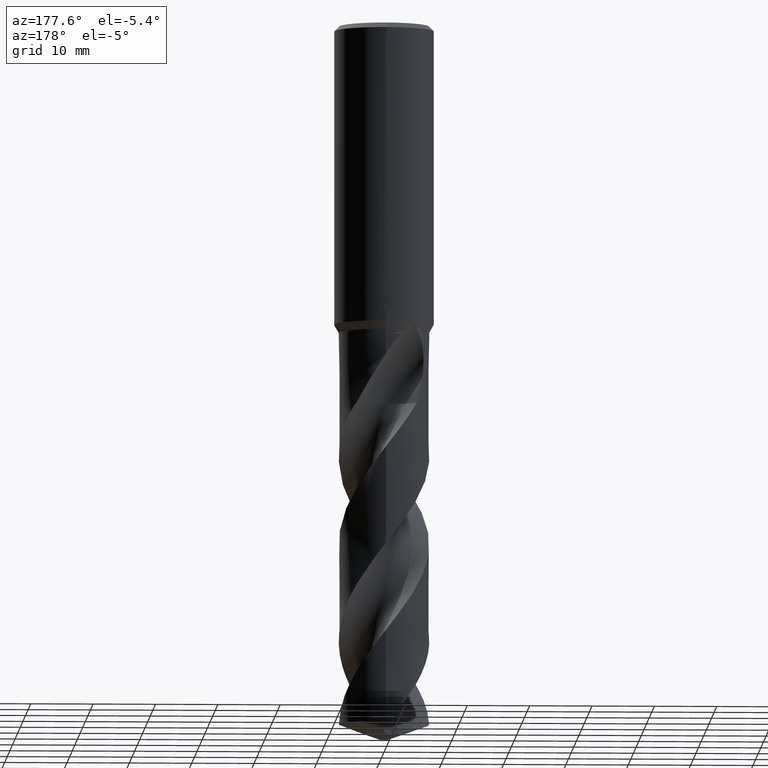
[diagram: clean part render]
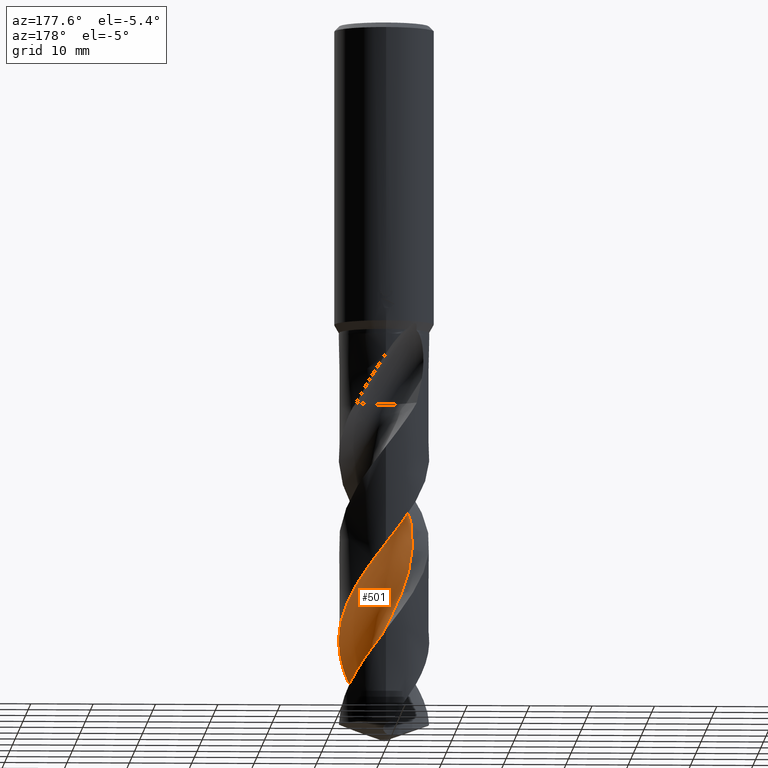
[diagram: same view with one face highlighted and labeled with its STEP entity id]
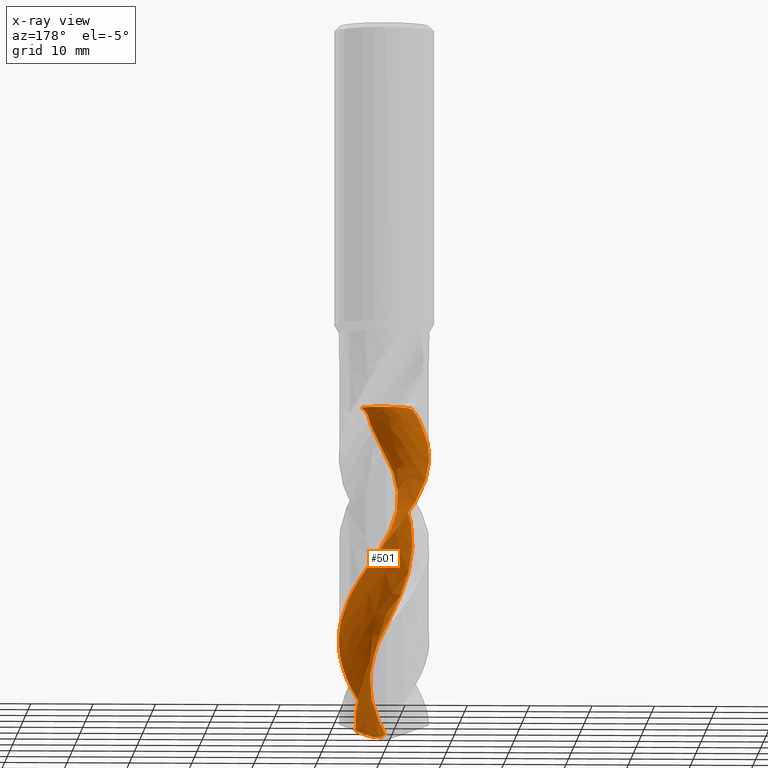
[diagram: x-ray of the same camera — body ghosted, the highlighted face saturated]
A machine part, auxiliary view. The second image highlights one B-rep face of the part: STEP entity #501.
The next image is the same camera in x-ray: the body ghosted, the highlighted face saturated — about 0% of this face is hidden behind the body in this view.
In plain terms, the highlighted face is a freeform B-spline surface patch.
Its self-contained STEP definition (entity closure, byte-faithful):
#311=VERTEX_POINT('',#843);
#339=VERTEX_POINT('',#877);
#363=VERTEX_POINT('',#903);
#501=ADVANCED_FACE('',(#1051),#1052,.F.);
#503=VERTEX_POINT('',#1054);
#519=EDGE_CURVE('',#689,#339,#1070,.T.);
#543=EDGE_CURVE('',#599,#609,#1094,.T.);
#549=VERTEX_POINT('',#1100);
#577=EDGE_CURVE('',#363,#599,#1130,.T.);
#597=EDGE_CURVE('',#339,#363,#1152,.T.);
#599=VERTEX_POINT('',#1154);
#609=VERTEX_POINT('',#1165);
#657=EDGE_CURVE('',#549,#311,#1218,.T.);
#689=VERTEX_POINT('',#1255);
#729=EDGE_CURVE('',#503,#689,#1301,.T.);
#731=EDGE_CURVE('',#609,#549,#1303,.T.);
#791=EDGE_CURVE('',#311,#503,#1369,.T.);
#843=CARTESIAN_POINT('',(4.52928945191563,-0.614668038946533,-113.336362181757));
#877=CARTESIAN_POINT('',(0.690855671745082,-7.21700896776619,-112.36121580157));
#903=CARTESIAN_POINT('',(2.27820117841889E-013,7.24995412114484,-83.7506039292155));
#1051=FACE_OUTER_BOUND('',#2386,.T.);
#1052=B_SPLINE_SURFACE_WITH_KNOTS('',3,3,((#2387,#2388,#2389,#2390,#2391,#2392,#2393,#2394,#2395,#2396,#2397,#2398,#2399,#2400,#2401,#2402,#2403,#2404,#2405,#2406,#2407,#2408,#2409,#2410,#2411,#2412,#2413,#2414,#2415,#2416,#2417,#2418,#2419,#2420,#2421,#2422,#2423,#2424,#2425,#2426,#2427,#2428,#2429,#2430,#2431,#2432,#2433,#2434,#2435,#2436,#2437,#2438,#2439,#2440,#2441,#2442),(#2443,#2444,#2445,#2446,#2447,#2448,#2449,#2450,#2451,#2452,#2453,#2454,#2455,#2456,#2457,#2458,#2459,#2460,#2461,#2462,#2463,#2464,#2465,#2466,#2467,#2468,#2469,#2470,#2471,#2472,#2473,#2474,#2475,#2476,#2477,#2478,#2479,#2480,#2481,#2482,#2483,#2484,#2485,#2486,#2487,#2488,#2489,#2490,#2491,#2492,#2493,#2494,#2495,#2496,#2497,#2498),(#2499,#2500,#2501,#2502,#2503,#2504,#2505,#2506,#2507,#2508,#2509,#2510,#2511,#2512,#2513,#2514,#2515,#2516,#2517,#2518,#2519,#2520,#2521,#2522,#2523,#2524,#2525,#2526,#2527,#2528,#2529,#2530,#2531,#2532,#2533,#2534,#2535,#2536,#2537,#2538,#2539,#2540,#2541,#2542,#2543,#2544,#2545,#2546,#2547,#2548,#2549,#2550,#2551,#2552,#2553,#2554),(#2555,#2556,#2557,#2558,#2559,#2560,#2561,#2562,#2563,#2564,#2565,#2566,#2567,#2568,#2569,#2570,#2571,#2572,#2573,#2574,#2575,#2576,#2577,#2578,#2579,#2580,#2581,#2582,#2583,#2584,#2585,#2586,#2587,#2588,#2589,#2590,#2591,#2592,#2593,#2594,#2595,#2596,#2597,#2598,#2599,#2600,#2601,#2602,#2603,#2604,#2605,#2606,#2607,#2608,#2609,#2610),(#2611,#2612,#2613,#2614,#2615,#2616,#2617,#2618,#2619,#2620,#2621,#2622,#2623,#2624,#2625,#2626,#2627,#2628,#2629,#2630,#2631,#2632,#2633,#2634,#2635,#2636,#2637,#2638,#2639,#2640,#2641,#2642,#2643,#2644,#2645,#2646,#2647,#2648,#2649,#2650,#2651,#2652,#2653,#2654,#2655,#2656,#2657,#2658,#2659,#2660,#2661,#2662,#2663,#2664,#2665,#2666),(#2667,#2668,#2669,#2670,#2671,#2672,#2673,#2674,#2675,#2676,#2677,#2678,#2679,#2680,#2681,#2682,#2683,#2684,#2685,#2686,#2687,#2688,#2689,#2690,#2691,#2692,#2693,#2694,#2695,#2696,#2697,#2698,#2699,#2700,#2701,#2702,#2703,#2704,#2705,#2706,#2707,#2708,#2709,#2710,#2711,#2712,#2713,#2714,#2715,#2716,#2717,#2718,#2719,#2720,#2721,#2722),(#2723,#2724,#2725,#2726,#2727,#2728,#2729,#2730,#2731,#2732,#2733,#2734,#2735,#2736,#2737,#2738,#2739,#2740,#2741,#2742,#2743,#2744,#2745,#2746,#2747,#2748,#2749,#2750,#2751,#2752,#2753,#2754,#2755,#2756,#2757,#2758,#2759,#2760,#2761,#2762,#2763,#2764,#2765,#2766,#2767,#2768,#2769,#2770,#2771,#2772,#2773,#2774,#2775,#2776,#2777,#2778),(#2779,#2780,#2781,#2782,#2783,#2784,#2785,#2786,#2787,#2788,#2789,#2790,#2791,#2792,#2793,#2794,#2795,#2796,#2797,#2798,#2799,#2800,#2801,#2802,#2803,#2804,#2805,#2806,#2807,#2808,#2809,#2810,#2811,#2812,#2813,#2814,#2815,#2816,#2817,#2818,#2819,#2820,#2821,#2822,#2823,#2824,#2825,#2826,#2827,#2828,#2829,#2830,#2831,#2832,#2833,#2834),(#2835,#2836,#2837,#2838,#2839,#2840,#2841,#2842,#2843,#2844,#2845,#2846,#2847,#2848,#2849,#2850,#2851,#2852,#2853,#2854,#2855,#2856,#2857,#2858,#2859,#2860,#2861,#2862,#2863,#2864,#2865,#2866,#2867,#2868,#2869,#2870,#2871,#2872,#2873,#2874,#2875,#2876,#2877,#2878,#2879,#2880,#2881,#2882,#2883,#2884,#2885,#2886,#2887,#2888,#2889,#2890),(#2891,#2892,#2893,#2894,#2895,#2896,#2897,#2898,#2899,#2900,#2901,#2902,#2903,#2904,#2905,#2906,#2907,#2908,#2909,#2910,#2911,#2912,#2913,#2914,#2915,#2916,#2917,#2918,#2919,#2920,#2921,#2922,#2923,#2924,#2925,#2926,#2927,#2928,#2929,#2930,#2931,#2932,#2933,#2934,#2935,#2936,#2937,#2938,#2939,#2940,#2941,#2942,#2943,#2944,#2945,#2946),(#2947,#2948,#2949,#2950,#2951,#2952,#2953,#2954,#2955,#2956,#2957,#2958,#2959,#2960,#2961,#2962,#2963,#2964,#2965,#2966,#2967,#2968,#2969,#2970,#2971,#2972,#2973,#2974,#2975,#2976,#2977,#2978,#2979,#2980,#2981,#2982,#2983,#2984,#2985,#2986,#2987,#2988,#2989,#2990,#2991,#2992,#2993,#2994,#2995,#2996,#2997,#2998,#2999,#3000,#3001,#3002)),.UNSPECIFIED.,.F.,.F.,.F.,(4,1,1,1,1,1,1,1,4),(4,1,2,1,2,2,2,2,2,1,2,1,2,1,2,1,2,1,2,1,2,1,2,1,2,1,2,1,2,1,2,1,2,2,4),(2.21912077308012E-017,0.392700689866117,0.785401379732233,1.17810206959835,1.57080275946447,1.96350344933058,2.3562041391967,2.74890482906282,3.14160551892893),(0.0,1.24217167477964,2.48434334955928,3.72651502433892,4.96868669911856,7.45303004867784,9.93737339823712,12.4217167477964,14.9060600973557,17.390403446915,19.8747467964742,22.3590901460335,24.8434334955928,27.3277768451521,29.8121201947114,32.2964635442707,34.7808068938299,37.2651502433892,39.7494935929485,42.2338369425078,44.718180292067,47.2025236416263,49.6868669911856,52.1712103407449,54.6555536903042,57.1398970398635,59.6242403894227,62.108583738982,64.5929270885413,67.0772704381006,69.5616137876599,72.0459571372191,74.5303004867784,77.0146438363377,79.498987185897),.UNSPECIFIED.);
#1054=CARTESIAN_POINT('',(1.04281220995313E-010,-3.1477596244773,-113.854309192065));
#1070=B_SPLINE_CURVE_WITH_KNOTS('',3,(#3063,#3064,#3065,#3066,#3067,#3068,#3069,#3070,#3071,#3072,#3073,#3074,#3075,#3076,#3077,#3078,#3079,#3080,#3081,#3082),.UNSPECIFIED.,.F.,.F.,(4,2,2,2,2,2,2,2,2,4),(0.0,2.94576345620333,5.04004362428446,7.08510512360731,9.50047032097527,12.3112459142431,15.5511977628099,19.2909845781173,22.3121397840312,25.3463355712291),.UNSPECIFIED.);
#1094=CIRCLE('',#3137,4.83333333);
#1100=CARTESIAN_POINT('',(3.41768277330725,-3.59065055669276,-60.967));
#1130=B_SPLINE_CURVE_WITH_KNOTS('',3,(#3440,#3441,#3442,#3443,#3444,#3445,#3446,#3447,#3448,#3449,#3450,#3451,#3452,#3453,#3454,#3455,#3456,#3457,#3458,#3459,#3460,#3461,#3462,#3463,#3464,#3465,#3466,#3467,#3468,#3469,#3470,#3471,#3472,#3473,#3474,#3475,#3476,#3477,#3478,#3479,#3480,#3481,#3482,#3483,#3484,#3485,#3486,#3487,#3488,#3489,#3490,#3491,#3492,#3493,#3494,#3495,#3496,#3497,#3498,#3499,#3500,#3501,#3502,#3503,#3504,#3505,#3506,#3507,#3508,#3509,#3510,#3511,#3512,#3513,#3514,#3515,#3516,#3517,#3518,#3519),.UNSPECIFIED.,.F.,.F.,(4,2,2,2,2,2,2,2,2,2,2,2,2,2,2,2,2,2,2,2,2,2,2,2,2,2,2,2,2,2,2,2,2,2,2,2,2,2,2,4),(0.0,1.89630091735271,3.54769438117396,6.23149635100796,7.9277649123938,8.87014856560747,10.1715284059933,12.8367731521679,14.1466410984459,17.7694263827033,18.2399507950682,22.108226263483,22.5791725981165,24.7011109531099,27.8436731671682,30.5580534895705,31.4112634065993,34.7687335778452,35.5468671292838,38.4004853594342,40.8946037696711,43.4027941907401,44.2312393576209,47.1084500815723,48.5084922544913,52.3117093416515,52.5165477494234,55.5510286134803,57.8097966749533,59.2349505615318,60.6003071453903,61.459676013462,62.8535724450805,63.1158260891668,63.1234531118705,63.2182455043556,63.3070749242383,63.4268241035185,63.6805968346564,63.9496781646283),.UNSPECIFIED.);
#1152=B_SPLINE_CURVE_WITH_KNOTS('',3,(#3632,#3633,#3634,#3635,#3636,#3637,#3638,#3639,#3640,#3641,#3642,#3643,#3644,#3645,#3646,#3647,#3648,#3649,#3650,#3651,#3652,#3653,#3654,#3655,#3656,#3657,#3658,#3659,#3660,#3661,#3662,#3663,#3664,#3665,#3666,#3667,#3668,#3669,#3670,#3671,#3672,#3673,#3674,#3675,#3676,#3677,#3678,#3679,#3680,#3681,#3682,#3683,#3684,#3685,#3686,#3687,#3688,#3689,#3690,#3691,#3692,#3693,#3694,#3695,#3696,#3697,#3698,#3699,#3700,#3701,#3702,#3703,#3704,#3705,#3706,#3707,#3708,#3709,#3710,#3711),.UNSPECIFIED.,.F.,.F.,(4,2,2,2,2,2,2,2,2,2,2,2,2,2,2,2,2,2,2,2,2,2,2,2,2,2,2,2,2,2,2,2,2,2,2,2,2,2,2,4),(0.0,1.89630091735271,3.54769438117396,6.23149635100796,7.9277649123938,8.87014856560747,10.1715284059933,12.8367731521679,14.1466410984459,17.7694263827033,18.2399507950682,22.108226263483,22.5791725981165,24.7011109531099,27.8436731671682,30.5580534895705,31.4112634065993,34.7687335778452,35.5468671292838,38.4004853594342,40.8946037696711,43.4027941907401,44.2312393576209,47.1084500815723,48.5084922544913,52.3117093416515,52.5165477494234,55.5510286134803,57.8097966749533,59.2349505615318,60.6003071453903,61.459676013462,62.8535724450805,63.1158260891668,63.1234531118705,63.2182455043556,63.3070749242383,63.4268241035185,63.6805968346564,63.9496781646283),.UNSPECIFIED.);
#1154=CARTESIAN_POINT('',(-4.61977415179415,-5.58739579713552,-60.967));
#1165=CARTESIAN_POINT('',(0.528166579226103,-2.20392502435465,-60.967));
#1218=B_SPLINE_CURVE_WITH_KNOTS('',3,(#4558,#4559,#4560,#4561,#4562,#4563,#4564,#4565,#4566,#4567,#4568,#4569,#4570,#4571,#4572,#4573,#4574,#4575,#4576,#4577,#4578,#4579,#4580,#4581,#4582,#4583,#4584,#4585,#4586,#4587,#4588,#4589,#4590,#4591,#4592,#4593,#4594,#4595,#4596,#4597,#4598,#4599,#4600,#4601,#4602,#4603,#4604,#4605,#4606,#4607,#4608,#4609,#4610,#4611,#4612,#4613),.UNSPECIFIED.,.F.,.F.,(4,1,2,1,2,2,2,2,2,1,2,1,2,1,2,1,2,1,2,1,2,1,2,1,2,1,2,1,2,1,2,1,2,2,4),(0.0,1.24217167477964,2.48434334955928,3.72651502433892,4.96868669911856,7.45303004867784,9.93737339823712,12.4217167477964,14.9060600973557,17.390403446915,19.8747467964742,22.3590901460335,24.8434334955928,27.3277768451521,29.8121201947114,32.2964635442707,34.7808068938299,37.2651502433892,39.7494935929485,42.2338369425078,44.718180292067,47.2025236416263,49.6868669911856,52.1712103407449,54.6555536903042,57.1398970398635,59.6242403894227,62.108583738982,64.5929270885413,67.0772704381006,69.5616137876599,72.0459571372191,74.5303004867784,77.0146438363377,79.498987185897),.UNSPECIFIED.);
#1255=CARTESIAN_POINT('',(3.40325919784824E-010,-6.11236871385267,-112.775279727297));
#1301=B_SPLINE_CURVE_WITH_KNOTS('',3,(#4927,#4928,#4929,#4930,#4931,#4932,#4933,#4934,#4935,#4936,#4937,#4938,#4939,#4940,#4941,#4942,#4943,#4944,#4945,#4946),.UNSPECIFIED.,.F.,.F.,(4,2,2,2,2,2,2,2,2,4),(0.0,2.94576345620333,5.04004362428446,7.08510512360731,9.50047032097527,12.3112459142431,15.5511977628099,19.2909845781173,22.3121397840312,25.3463355712291),.UNSPECIFIED.);
#1303=CIRCLE('',#4949,4.83333333);
#1369=B_SPLINE_CURVE_WITH_KNOTS('',3,(#5228,#5229,#5230,#5231,#5232,#5233,#5234,#5235,#5236,#5237,#5238,#5239,#5240,#5241,#5242,#5243,#5244,#5245,#5246,#5247),.UNSPECIFIED.,.F.,.F.,(4,2,2,2,2,2,2,2,2,4),(0.0,2.94576345620333,5.04004362428446,7.08510512360731,9.50047032097527,12.3112459142431,15.5511977628099,19.2909845781173,22.3121397840312,25.3463355712291),.UNSPECIFIED.);
#2386=EDGE_LOOP('',(#5547,#5548,#5549,#5550,#5551,#5552,#5553,#5554));
#2387=CARTESIAN_POINT('',(-3.41768277330725,-10.4260161033072,-60.967));
#2388=CARTESIAN_POINT('',(-3.72103539417107,-10.4123643891779,-61.2480711086414));
#2389=CARTESIAN_POINT('',(-4.33476078758954,-10.3217362542853,-61.8142350771168));
#2390=CARTESIAN_POINT('',(-4.94678524881771,-10.0676422167418,-62.3825726107345));
#2391=CARTESIAN_POINT('',(-5.53877671443436,-9.71473073780565,-62.9434817578226));
#2392=CARTESIAN_POINT('',(-6.11200412983247,-9.3433599978959,-63.502862162668));
#2393=CARTESIAN_POINT('',(-6.65199076016543,-8.94306245497831,-64.0637040417907));
#2394=CARTESIAN_POINT('',(-7.43863169943468,-8.3249079483902,-64.9088137016416));
#2395=CARTESIAN_POINT('',(-7.92682871155817,-7.86692309068841,-65.4725381652027));
#2396=CARTESIAN_POINT('',(-8.81115918078547,-6.86656910844242,-66.5996373406758));
#2397=CARTESIAN_POINT('',(-9.20824828911007,-6.32655738556977,-67.162776138473));
#2398=CARTESIAN_POINT('',(-9.89531069049021,-5.1782336314604,-68.2873441924017));
#2399=CARTESIAN_POINT('',(-10.1888781130099,-4.57524084072391,-68.8499527391492));
#2400=CARTESIAN_POINT('',(-10.663046916965,-3.32582554488592,-69.9764636801446));
#2401=CARTESIAN_POINT('',(-10.8443618483009,-2.68020862174347,-70.5396513305813));
#2402=CARTESIAN_POINT('',(-11.0834729280153,-1.36384085059261,-71.6653248443409));
#2403=CARTESIAN_POINT('',(-11.2087432104962,-0.0293196316606935,-72.7906669555592));
#2404=CARTESIAN_POINT('',(-11.095156198661,1.30704878109244,-73.9169878183782));
#2405=CARTESIAN_POINT('',(-10.8550661836137,2.62377811429785,-75.0428273532189));
#2406=CARTESIAN_POINT('',(-10.5019624401508,3.91714442594703,-76.1682005269797));
#2407=CARTESIAN_POINT('',(-9.92512848911383,5.1279527297822,-77.2944705769348));
#2408=CARTESIAN_POINT('',(-9.23722622836109,6.27595332790767,-78.420313242503));
#2409=CARTESIAN_POINT('',(-8.45173562567946,7.36236681961955,-79.5457111167253));
#2410=CARTESIAN_POINT('',(-7.48573154072617,8.29275098383216,-80.6719966090462));
#2411=CARTESIAN_POINT('',(-6.43777714365606,9.12520339953235,-81.7978263821828));
#2412=CARTESIAN_POINT('',(-5.32016467338637,9.86566193201363,-82.923209411232));
#2413=CARTESIAN_POINT('',(-4.08853262217925,10.3965733037835,-84.0494919148935));
#2414=CARTESIAN_POINT('',(-2.81467434137533,10.8069978947313,-85.1753310129275));
#2415=CARTESIAN_POINT('',(-1.50798657182229,11.1067979745975,-86.3007217515263));
#2416=CARTESIAN_POINT('',(-0.168312791633921,11.1703259623264,-87.4270052659828));
#2417=CARTESIAN_POINT('',(1.16848788873493,11.1062151848358,-88.5528411274049));
#2418=CARTESIAN_POINT('',(2.49709019514476,10.9270052424268,-89.6782293235241));
#2419=CARTESIAN_POINT('',(3.7734257117359,10.5150298243087,-90.8045110199467));
#2420=CARTESIAN_POINT('',(5.00215588688909,9.98459070846863,-91.9303450431737));
#2421=CARTESIAN_POINT('',(6.18270887764648,9.34929954020279,-93.0557323577782));
#2422=CARTESIAN_POINT('',(7.23242602151235,8.51452196576517,-94.1820153230275));
#2423=CARTESIAN_POINT('',(8.19589296727063,7.58560887322284,-95.3078517273173));
#2424=CARTESIAN_POINT('',(9.07736467155909,6.57550337027523,-96.4332387430683));
#2425=CARTESIAN_POINT('',(9.76616989178842,5.4247129995917,-97.5595127820066));
#2426=CARTESIAN_POINT('',(10.3411186478922,4.21616024974355,-98.6853346037139));
#2427=CARTESIAN_POINT('',(10.8107438046289,2.96045601025852,-99.8107196895131));
#2428=CARTESIAN_POINT('',(11.0504772323807,1.64085563960335,-100.937023996849));
#2429=CARTESIAN_POINT('',(11.1632698209115,0.30725844029116,-102.062894030576));
#2430=CARTESIAN_POINT('',(11.1609039105884,-1.03336836443122,-103.18828743538));
#2431=CARTESIAN_POINT('',(10.9210476839918,-2.35288243134762,-104.31450770048));
#2432=CARTESIAN_POINT('',(10.557585764646,-3.64086603393987,-105.440244516493));
#2433=CARTESIAN_POINT('',(10.0836855934231,-4.89500087342201,-106.565613744007));
#2434=CARTESIAN_POINT('',(9.39423733644415,-6.04565350389721,-107.692069200609));
#2435=CARTESIAN_POINT('',(8.59977638488715,-7.1230503164879,-108.818188212913));
#2436=CARTESIAN_POINT('',(7.71461217981318,-8.1298800023237,-109.943705384161));
#2437=CARTESIAN_POINT('',(6.66617660143531,-8.96524404741096,-111.069759911034));
#2438=CARTESIAN_POINT('',(5.54625101748507,-9.69615627865122,-112.195151815519));
#2439=CARTESIAN_POINT('',(4.95418062250353,-10.0115878142714,-112.757905200918));
#2440=CARTESIAN_POINT('',(3.71970536683163,-10.5268523429946,-113.883279927223));
#2441=CARTESIAN_POINT('',(3.0844593094265,-10.7330134172781,-114.445101940546));
#2442=CARTESIAN_POINT('',(2.43849289451744,-10.8869171930542,-115.007714273096));
#2443=CARTESIAN_POINT('',(-3.8650387426921,-9.97862115201322,-60.9670000000006));
#2444=CARTESIAN_POINT('',(-4.16886455013728,-9.96544258113972,-61.248084877724));
#2445=CARTESIAN_POINT('',(-4.7752370200747,-9.86722298164417,-61.8147181678054));
#2446=CARTESIAN_POINT('',(-5.36178468571351,-9.58950859310283,-62.3837413184323));
#2447=CARTESIAN_POINT('',(-5.91731110660361,-9.20723847067759,-62.9443351088923));
#2448=CARTESIAN_POINT('',(-6.4545302029766,-8.81019570613031,-63.5032190892946));
#2449=CARTESIAN_POINT('',(-6.9604280166029,-8.39034112083092,-64.0637906355093));
#2450=CARTESIAN_POINT('',(-7.69765395048238,-7.746482697442,-64.9090168048289));
#2451=CARTESIAN_POINT('',(-8.15145487278458,-7.27425948112458,-65.4728463046073));
#2452=CARTESIAN_POINT('',(-8.96391555250959,-6.25144953053595,-66.6001159899609));
#2453=CARTESIAN_POINT('',(-9.32397422482219,-5.70336735530563,-67.1632874581705));
#2454=CARTESIAN_POINT('',(-9.93496761448463,-4.5456315328113,-68.2876808237157));
#2455=CARTESIAN_POINT('',(-10.1906712252888,-3.94142770640287,-68.8502459363771));
#2456=CARTESIAN_POINT('',(-10.5892630410687,-2.69631952288316,-69.976850460435));
#2457=CARTESIAN_POINT('',(-10.7330610299439,-2.05621724751487,-70.5400757800791));
#2458=CARTESIAN_POINT('',(-10.8977975675591,-0.757806660411934,-71.6657269956522));
#2459=CARTESIAN_POINT('',(-10.9514872034849,0.552354223708792,-72.7910006403469));
#2460=CARTESIAN_POINT('',(-10.7716237737108,1.85210618635289,-73.9173889648941));
#2461=CARTESIAN_POINT('',(-10.4680581388102,3.12575939950202,-75.0432291159196));
#2462=CARTESIAN_POINT('',(-10.0564137364393,4.37103922794294,-76.1685381047616));
#2463=CARTESIAN_POINT('',(-9.43043405867431,5.52423059214784,-77.2948686558282));
#2464=CARTESIAN_POINT('',(-8.69831137459952,6.60961356920698,-78.4207123997197));
#2465=CARTESIAN_POINT('',(-7.87496429878055,7.63044709242781,-79.5460495502483));
#2466=CARTESIAN_POINT('',(-6.88323047139651,8.48960570580115,-80.6723976377365));
#2467=CARTESIAN_POINT('',(-5.81591543317558,9.2478695131578,-81.7982267176652));
#2468=CARTESIAN_POINT('',(-4.68594591519738,9.9136114989949,-82.923546934545));
#2469=CARTESIAN_POINT('',(-3.45529665548452,10.3688002038844,-84.0498916265339));
#2470=CARTESIAN_POINT('',(-2.18942423526544,10.7029734694443,-85.1757313407527));
#2471=CARTESIAN_POINT('',(-0.897463038001598,10.9284909190242,-86.3010603359781));
#2472=CARTESIAN_POINT('',(0.4146435686695,10.9214866807929,-87.4274061813281));
#2473=CARTESIAN_POINT('',(1.71713587990637,10.7888130234388,-88.5532421967964));
#2474=CARTESIAN_POINT('',(3.00581320714363,10.5452550382236,-89.6785682637708));
#2475=CARTESIAN_POINT('',(4.23152434830651,10.0769605014248,-90.8049121033409));
#2476=CARTESIAN_POINT('',(5.40401310541727,9.49441776383801,-91.9307459725218));
#2477=CARTESIAN_POINT('',(6.524550511298,8.81294460230535,-93.0560711342407));
#2478=CARTESIAN_POINT('',(7.50706208300077,7.94326531944107,-94.1824164350815));
#2479=CARTESIAN_POINT('',(8.39954885602501,6.98537305695194,-95.3082528393713));
#2480=CARTESIAN_POINT('',(9.20859132771858,5.95315944347083,-96.4335775294405));
#2481=CARTESIAN_POINT('',(9.82220723661451,4.79335023791529,-97.5599126407057));
#2482=CARTESIAN_POINT('',(10.3205182039421,3.58265068105685,-98.685732921951));
#2483=CARTESIAN_POINT('',(10.7145662242872,2.3317409502381,-99.811056124282));
#2484=CARTESIAN_POINT('',(10.8807400987573,1.03016030460596,-100.93742548493));
#2485=CARTESIAN_POINT('',(10.9210325407614,-0.278472091542488,-102.063299215766));
#2486=CARTESIAN_POINT('',(10.8496116472719,-1.58801112790999,-103.188629035471));
#2487=CARTESIAN_POINT('',(10.547264278375,-2.86478472585145,-104.314903334899));
#2488=CARTESIAN_POINT('',(10.1247537572002,-4.1039147058951,-105.44063090814));
#2489=CARTESIAN_POINT('',(9.5971456366592,-5.304654637082,-106.565943520293));
#2490=CARTESIAN_POINT('',(8.86418482118727,-6.39322775316441,-107.692481742086));
#2491=CARTESIAN_POINT('',(8.03158626835633,-7.4039828922513,-108.818621704672));
#2492=CARTESIAN_POINT('',(7.11499107872992,-8.34193922075303,-109.944060625395));
#2493=CARTESIAN_POINT('',(6.04776985019649,-9.10423290463013,-111.070140101476));
#2494=CARTESIAN_POINT('',(4.91562489854001,-9.75983653467602,-112.195508436893));
#2495=CARTESIAN_POINT('',(4.32085341407053,-10.0372671727889,-112.758279873901));
#2496=CARTESIAN_POINT('',(3.08791867810231,-10.4757838852421,-113.883707746143));
#2497=CARTESIAN_POINT('',(2.45688073518012,-10.6449591560618,-114.445453820404));
#2498=CARTESIAN_POINT('',(1.81801367389519,-10.7632442361549,-115.008091493553));
#2499=CARTESIAN_POINT('',(-4.58164976878203,-8.90612271102213,-60.9669999999994));
#2500=CARTESIAN_POINT('',(-4.88660990506049,-8.89370206775066,-61.2481075242369));
#2501=CARTESIAN_POINT('',(-5.47526075186956,-8.78322677335567,-61.8155126954671));
#2502=CARTESIAN_POINT('',(-6.00147307598337,-8.46841210729779,-62.3856634645065));
#2503=CARTESIAN_POINT('',(-6.47240965806943,-8.04193818894169,-62.9457385956675));
#2504=CARTESIAN_POINT('',(-6.92741827499351,-7.60788167879954,-63.5038061164874));
#2505=CARTESIAN_POINT('',(-7.35737572139471,-7.16247714855787,-64.0639330573774));
#2506=CARTESIAN_POINT('',(-7.98557093009042,-6.48687216624753,-64.9093508374956));
#2507=CARTESIAN_POINT('',(-8.36493209461895,-5.99985627592655,-65.4733531098453));
#2508=CARTESIAN_POINT('',(-9.02475361042626,-4.96072378626598,-66.6009031977129));
#2509=CARTESIAN_POINT('',(-9.30755766609774,-4.41122971892064,-67.1641283761153));
#2510=CARTESIAN_POINT('',(-9.76270219588384,-3.26492361590721,-68.2882345109966));
#2511=CARTESIAN_POINT('',(-9.94221253023454,-2.67335531397531,-68.8507281694968));
#2512=CARTESIAN_POINT('',(-10.1913950373179,-1.46691366269533,-69.9774865704666));
#2513=CARTESIAN_POINT('',(-10.2623678667949,-0.85275744918475,-70.5407738601906));
#2514=CARTESIAN_POINT('',(-10.2855275567523,0.380170277580404,-71.6663884065953));
#2515=CARTESIAN_POINT('',(-10.2057732598926,1.6131557739965,-72.7915494297082));
#2516=CARTESIAN_POINT('',(-9.90794589371897,2.81333453482252,-73.9180487475798));
#2517=CARTESIAN_POINT('',(-9.49458554175883,3.97561179342824,-75.0438898592871));
#2518=CARTESIAN_POINT('',(-8.98500669470973,5.10145933938052,-76.1690933306361));
#2519=CARTESIAN_POINT('',(-8.2836684142039,6.11989777546476,-77.2955233540847));
#2520=CARTESIAN_POINT('',(-7.48802416972649,7.06248690524104,-78.4213688970686));
#2521=CARTESIAN_POINT('',(-6.615058885786,7.93713405568468,-79.5466061455849));
#2522=CARTESIAN_POINT('',(-5.6002001614859,8.64363981896755,-80.6730572242101));
#2523=CARTESIAN_POINT('',(-4.52367404918969,9.24585855646261,-81.7988851161394));
#2524=CARTESIAN_POINT('',(-3.39870769679419,9.75728501780831,-82.9241020421851));
#2525=CARTESIAN_POINT('',(-2.20013569923796,10.0614510959274,-84.0505490650411));
#2526=CARTESIAN_POINT('',(-0.980553967498438,10.2463294686002,-85.1763897084766));
#2527=CARTESIAN_POINT('',(0.252420787476034,10.3291691801104,-86.3016171954787));
#2528=CARTESIAN_POINT('',(1.48135660903987,10.192092632064,-87.4280656044018));
#2529=CARTESIAN_POINT('',(2.68798170386456,9.93596524198108,-88.5539017792996));
#2530=CARTESIAN_POINT('',(3.87123701398479,9.57961499337899,-89.679125777427));
#2531=CARTESIAN_POINT('',(4.97332469684602,9.0188373503865,-90.8055716697107));
#2532=CARTESIAN_POINT('',(6.01263461589904,8.35447446060878,-91.9314054577796));
#2533=CARTESIAN_POINT('',(6.99480122708703,7.60452275096167,-93.0566283635313));
#2534=CARTESIAN_POINT('',(7.82905084143111,6.69177993490265,-94.1830759455302));
#2535=CARTESIAN_POINT('',(8.56808320865493,5.70416769619977,-95.3089127281681));
#2536=CARTESIAN_POINT('',(9.22350615080393,4.65654965313273,-96.434134675719));
#2537=CARTESIAN_POINT('',(9.68318857154262,3.50860659163533,-97.5605701852452));
#2538=CARTESIAN_POINT('',(10.0274026169396,2.32409030707695,-98.6863881203834));
#2539=CARTESIAN_POINT('',(10.2722347627611,1.11282187994773,-99.8116093776468));
#2540=CARTESIAN_POINT('',(10.2984861858634,-0.123475026277453,-100.938085855368));
#2541=CARTESIAN_POINT('',(10.2037365960886,-1.35335767868985,-102.063965562034));
#2542=CARTESIAN_POINT('',(10.0065971471125,-2.57327362783806,-103.189190822322));
#2543=CARTESIAN_POINT('',(9.59629022306795,-3.7397338873481,-104.315554147608));
#2544=CARTESIAN_POINT('',(9.0751345414183,-4.85769571971024,-105.441266275445));
#2545=CARTESIAN_POINT('',(8.46136640351783,-5.93031064409321,-106.56648583576));
#2546=CARTESIAN_POINT('',(7.66608554387424,-6.8774475439,-107.693160481233));
#2547=CARTESIAN_POINT('',(6.78372867823427,-7.73978148000505,-108.819334416658));
#2548=CARTESIAN_POINT('',(5.83167325901124,-8.52752112431179,-109.944645015249));
#2549=CARTESIAN_POINT('',(4.75594599375972,-9.13623453576906,-111.070765367837));
#2550=CARTESIAN_POINT('',(3.62931492158249,-9.63639342953589,-112.196094987714));
#2551=CARTESIAN_POINT('',(3.04425391239168,-9.83676421217514,-112.758896033228));
#2552=CARTESIAN_POINT('',(1.84491938534658,-10.1224301426545,-113.884411426484));
#2553=CARTESIAN_POINT('',(1.23700382046148,-10.2193227669463,-114.446032551902));
#2554=CARTESIAN_POINT('',(0.62649668175956,-10.2692086694292,-115.008711899232));
#2555=CARTESIAN_POINT('',(-4.95915508752301,-7.00833940134795,-60.9670000000003));
#2556=CARTESIAN_POINT('',(-5.2661224038993,-6.99631801988888,-61.2481216570642));
#2557=CARTESIAN_POINT('',(-5.82317680499373,-6.87903043821476,-61.816008689282));
#2558=CARTESIAN_POINT('',(-6.244472523179,-6.54743117938686,-62.3868633741851));
#2559=CARTESIAN_POINT('',(-6.5727971394286,-6.10825335547743,-62.9466147363662));
#2560=CARTESIAN_POINT('',(-6.89261890068937,-5.67009226656189,-63.5041725702397));
#2561=CARTESIAN_POINT('',(-7.20266109033057,-5.23287088982578,-64.0640219657839));
#2562=CARTESIAN_POINT('',(-7.66152286733372,-4.57585660026154,-64.9095593587595));
#2563=CARTESIAN_POINT('',(-7.92922377041963,-4.1110712348673,-65.4736694857459));
#2564=CARTESIAN_POINT('',(-8.368127587026,-3.13693936061549,-66.601394618789));
#2565=CARTESIAN_POINT('',(-8.54305138413752,-2.62983660170533,-67.1646533528606));
#2566=CARTESIAN_POINT('',(-8.78876098534428,-1.5888369309388,-68.2885801266625));
#2567=CARTESIAN_POINT('',(-8.86992595767598,-1.05851952291297,-68.8510291972229));
#2568=CARTESIAN_POINT('',(-8.9342336653665,0.00856425378987397,-69.9778836765471));
#2569=CARTESIAN_POINT('',(-8.91917008205938,0.544955604220797,-70.5412096331045));
#2570=CARTESIAN_POINT('',(-8.78370417900945,1.60585595281568,-71.6668013058099));
#2571=CARTESIAN_POINT('',(-8.56330820394081,2.65527765744375,-72.7918920245327));
#2572=CARTESIAN_POINT('',(-8.15915079687584,3.64973726609971,-73.918460594857));
#2573=CARTESIAN_POINT('',(-7.65755784494243,4.5946269531826,-75.0443023599503));
#2574=CARTESIAN_POINT('',(-7.08080874295323,5.49872983405861,-76.1694399232977));
#2575=CARTESIAN_POINT('',(-6.35238355479807,6.28714987575549,-77.2959320496089));
#2576=CARTESIAN_POINT('',(-5.55067374497897,6.99537167551775,-78.4217787249009));
#2577=CARTESIAN_POINT('',(-4.69285953640293,7.6389306862964,-79.5469535943081));
#2578=CARTESIAN_POINT('',(-3.7335818280458,8.12059487317163,-80.6734689911328));
#2579=CARTESIAN_POINT('',(-2.73386775131474,8.5012579432753,-81.7992961108613));
#2580=CARTESIAN_POINT('',(-1.70442064694714,8.80168536797732,-82.9244485920075));
#2581=CARTESIAN_POINT('',(-0.637000344558849,8.91495812591207,-84.0509594513485));
#2582=CARTESIAN_POINT('',(0.432722550053786,8.91949700172341,-85.1768007237362));
#2583=CARTESIAN_POINT('',(1.50204151385979,8.83845611697087,-86.3019648254407));
#2584=CARTESIAN_POINT('',(2.54103999160649,8.56885229991858,-87.4284772168207));
#2585=CARTESIAN_POINT('',(3.54393062735569,8.19665903695606,-88.5543135656528));
#2586=CARTESIAN_POINT('',(4.51632935596819,7.74450391819009,-89.679473766796));
#2587=CARTESIAN_POINT('',(5.39399312415455,7.12651709712297,-90.8059834567183));
#2588=CARTESIAN_POINT('',(6.20175698019056,6.42520845460114,-91.9318170983022));
#2589=CARTESIAN_POINT('',(6.95284060464137,5.65978212913299,-93.0569761579305));
#2590=CARTESIAN_POINT('',(7.5568883203855,4.7724660784987,-94.1834878176146));
#2591=CARTESIAN_POINT('',(8.06618229006737,3.83175475104469,-95.3093245006341));
#2592=CARTESIAN_POINT('',(8.4998557837758,2.8509728297651,-96.4344825249283));
#2593=CARTESIAN_POINT('',(8.75300845057331,1.80784117589677,-97.5609807368753));
#2594=CARTESIAN_POINT('',(8.89868492788293,0.748072824768987,-98.6867970580618));
#2595=CARTESIAN_POINT('',(8.95946995518005,-0.322597676071554,-99.8119548080094));
#2596=CARTESIAN_POINT('',(8.82927447133599,-1.38809299562975,-100.938498055168));
#2597=CARTESIAN_POINT('',(8.59257193690556,-2.43131259720373,-102.064381574735));
#2598=CARTESIAN_POINT('',(8.27264334551066,-3.45484786695782,-103.189541540112));
#2599=CARTESIAN_POINT('',(7.77603713536868,-4.406446832805,-104.31596034438));
#2600=CARTESIAN_POINT('',(7.1877226839881,-5.29985023009543,-105.441662985861));
#2601=CARTESIAN_POINT('',(6.52809292037072,-6.14543202935785,-106.566824408513));
#2602=CARTESIAN_POINT('',(5.72763221826343,-6.86077287049481,-107.693584054483));
#2603=CARTESIAN_POINT('',(4.86151516746345,-7.4888410406192,-108.819779466838));
#2604=CARTESIAN_POINT('',(3.94654641359917,-8.04803429281638,-109.94500975019));
#2605=CARTESIAN_POINT('',(2.94719341141658,-8.43901272198965,-111.071155709647));
#2606=CARTESIAN_POINT('',(1.91743754587276,-8.72690084716062,-112.196461131548));
#2607=CARTESIAN_POINT('',(1.39007097641276,-8.82604605869757,-112.759280717339));
#2608=CARTESIAN_POINT('',(0.325048287142114,-8.91915928670303,-113.884850661852));
#2609=CARTESIAN_POINT('',(-0.209327120019422,-8.9291464324253,-114.446393738801));
#2610=CARTESIAN_POINT('',(-0.741264623461435,-8.90051563660432,-115.009099191971));
#2611=CARTESIAN_POINT('',(-4.58167124212969,-5.11055182034286,-60.9670000000004));
#2612=CARTESIAN_POINT('',(-4.89064574141348,-5.09813119355608,-61.2481138077094));
#2613=CARTESIAN_POINT('',(-5.41590176783418,-4.9866414716889,-61.8157332513165));
#2614=CARTESIAN_POINT('',(-5.73384622120591,-4.67968432731907,-62.3861970285377));
#2615=CARTESIAN_POINT('',(-5.92555203909618,-4.28334540223585,-62.9461281925141));
#2616=CARTESIAN_POINT('',(-6.11890567282234,-3.89312666130292,-63.5039690659489));
#2617=CARTESIAN_POINT('',(-6.32129230594897,-3.50935530088319,-64.0639725948832));
#2618=CARTESIAN_POINT('',(-6.63082489357584,-2.93431787795492,-64.9094435561008));
#2619=CARTESIAN_POINT('',(-6.80387259841434,-2.5328014699923,-65.473493800059));
#2620=CARTESIAN_POINT('',(-7.06355010358735,-1.70326398109988,-66.6011217119658));
#2621=CARTESIAN_POINT('',(-7.15502812824445,-1.27660975288483,-67.1643618260232));
#2622=CARTESIAN_POINT('',(-7.24754421606239,-0.413048227062609,-68.2883881889097));
#2623=CARTESIAN_POINT('',(-7.26128976943816,0.0230454514626084,-68.8508620282649));
#2624=CARTESIAN_POINT('',(-7.20812571721293,0.890630716096509,-69.9776631520554));
#2625=CARTESIAN_POINT('',(-7.14333435371903,1.32225196580446,-70.5409676381429));
#2626=CARTESIAN_POINT('',(-6.92714984315504,2.16351622873515,-71.6665720091327));
#2627=CARTESIAN_POINT('',(-6.64706505847298,2.98952566282422,-72.7917017825877));
#2628=CARTESIAN_POINT('',(-6.2233971377257,3.75323487891923,-73.9182318651781));
#2629=CARTESIAN_POINT('',(-5.72347888363137,4.46351947496708,-75.0440733058953));
#2630=CARTESIAN_POINT('',(-5.16953091218484,5.13705199506561,-76.1692474356169));
#2631=CARTESIAN_POINT('',(-4.50410522764882,5.70259725227253,-77.2957051001356));
#2632=CARTESIAN_POINT('',(-3.78648038101768,6.19197073388089,-78.4215511252044));
#2633=CARTESIAN_POINT('',(-3.031097894793,6.62783035381145,-79.5467606515793));
#2634=CARTESIAN_POINT('',(-2.20921373818969,6.92303816578197,-80.6732403252807));
#2635=CARTESIAN_POINT('',(-1.36525065199842,7.12840543984383,-81.7990678739017));
#2636=CARTESIAN_POINT('',(-0.504797985545699,7.27044899430563,-82.9242561334326));
#2637=CARTESIAN_POINT('',(0.368402135667185,7.25754921514796,-84.0507315714993));
#2638=CARTESIAN_POINT('',(1.23066040043997,7.15282494548939,-85.1765724560654));
#2639=CARTESIAN_POINT('',(2.08606654275425,6.98300677177165,-86.3017717820168));
#2640=CARTESIAN_POINT('',(2.89886979575216,6.66364994778116,-87.4282486454221));
#2641=CARTESIAN_POINT('',(3.66911781176194,6.26219194963534,-88.5540848804261));
#2642=CARTESIAN_POINT('',(4.41004742982684,5.80221634876023,-89.679280517414));
#2643=CARTESIAN_POINT('',(5.05847763648707,5.2172587590669,-90.8057547904394));
#2644=CARTESIAN_POINT('',(5.63818240169476,4.57042589643271,-91.9315884919824));
#2645=CARTESIAN_POINT('',(6.16985131440613,3.87913487249891,-93.0567830296909));
#2646=CARTESIAN_POINT('',(6.57095086525862,3.10340478711718,-94.183259080431));
#2647=CARTESIAN_POINT('',(6.88594259853655,2.29394164752026,-95.3090958447104));
#2648=CARTESIAN_POINT('',(7.14032355981405,1.45976839630189,-96.4342893094343));
#2649=CARTESIAN_POINT('',(7.24277754241106,0.592505545134237,-97.5607528229456));
#2650=CARTESIAN_POINT('',(7.25276841727579,-0.276033503635469,-98.6865698864119));
#2651=CARTESIAN_POINT('',(7.19732088209409,-1.14637643023899,-99.811763055585));
#2652=CARTESIAN_POINT('',(6.98795057720794,-1.99420196105992,-100.938269076279));
#2653=CARTESIAN_POINT('',(6.69153380638601,-2.81064428932207,-102.064150623789));
#2654=CARTESIAN_POINT('',(6.33331481027074,-3.6057579461345,-103.189346757359));
#2655=CARTESIAN_POINT('',(5.83920266070057,-4.32582570353724,-104.315734737636));
#2656=CARTESIAN_POINT('',(5.27477672391997,-4.986063664054,-105.44144271553));
#2657=CARTESIAN_POINT('',(4.6596585154187,-5.60434368312231,-106.566636398011));
#2658=CARTESIAN_POINT('',(3.94311710544126,-6.1035509068972,-107.693348781044));
#2659=CARTESIAN_POINT('',(3.18165352810502,-6.52140057033403,-108.81953236911));
#2660=CARTESIAN_POINT('',(2.38840972461833,-6.88363706527756,-109.94480720265));
#2661=CARTESIAN_POINT('',(1.54294110827643,-7.10268200620151,-111.07093889039));
#2662=CARTESIAN_POINT('',(0.683919060254811,-7.23153028737059,-112.196257852915));
#2663=CARTESIAN_POINT('',(0.248592630654841,-7.25923413921304,-112.759067147242));
#2664=CARTESIAN_POINT('',(-0.618655248712241,-7.22585106486502,-113.884606686163));
#2665=CARTESIAN_POINT('',(-1.05183093919115,-7.18369074284619,-114.446193093195));
#2666=CARTESIAN_POINT('',(-1.48113250309112,-7.1125874415731,-115.008884117358));
#2667=CARTESIAN_POINT('',(-3.50666719078733,-3.5016832595975,-60.9670000000001));
#2668=CARTESIAN_POINT('',(-3.8173433100855,-3.48812566026761,-61.2480851677348));
#2669=CARTESIAN_POINT('',(-4.31544006982329,-3.39416126753043,-61.8147283171989));
#2670=CARTESIAN_POINT('',(-4.54733302065856,-3.14952138125405,-62.3837658721912));
#2671=CARTESIAN_POINT('',(-4.62921235650985,-2.84504226422866,-62.9443530378786));
#2672=CARTESIAN_POINT('',(-4.72407037106914,-2.54751395362811,-63.5032265864518));
#2673=CARTESIAN_POINT('',(-4.84745085304082,-2.25432213545233,-64.0637924579242));
#2674=CARTESIAN_POINT('',(-5.05039271630095,-1.81216739439599,-64.9090210657339));
#2675=CARTESIAN_POINT('',(-5.16020447030781,-1.50532619611622,-65.472852780836));
#2676=CARTESIAN_POINT('',(-5.30963286969403,-0.877963485001856,-66.6001260438862));
#2677=CARTESIAN_POINT('',(-5.35480356127268,-0.557567354114369,-67.1632981825539));
#2678=CARTESIAN_POINT('',(-5.37369007081926,0.0834378722564232,-68.2876879144841));
#2679=CARTESIAN_POINT('',(-5.36120620850669,0.40667978851412,-68.8502521073051));
#2680=CARTESIAN_POINT('',(-5.27585761964705,1.04499804207751,-69.9768585755978));
#2681=CARTESIAN_POINT('',(-5.20521773141202,1.36079437691999,-70.5400846981911));
#2682=CARTESIAN_POINT('',(-4.99851043000773,1.96825167422981,-71.6657354441341));
#2683=CARTESIAN_POINT('',(-4.74877680875982,2.56501316095956,-72.7910076491132));
#2684=CARTESIAN_POINT('',(-4.39538826091002,3.10807067331839,-73.9173973970884));
#2685=CARTESIAN_POINT('',(-3.98679701267197,3.6022494444587,-75.0432375525696));
#2686=CARTESIAN_POINT('',(-3.5421502936879,4.0714884670237,-76.168545199705));
#2687=CARTESIAN_POINT('',(-3.02021931369467,4.45523340904822,-77.2948770184581));
#2688=CARTESIAN_POINT('',(-2.46402871110781,4.77459563310754,-78.4207207867366));
#2689=CARTESIAN_POINT('',(-1.88276415781169,5.05776511470956,-79.5460566528776));
#2690=CARTESIAN_POINT('',(-1.25916896586493,5.23328836622009,-80.6724060778165));
#2691=CARTESIAN_POINT('',(-0.626184008159656,5.33630704203956,-81.7982351139691));
#2692=CARTESIAN_POINT('',(0.0175271548428548,5.39669463405193,-82.9235540134244));
#2693=CARTESIAN_POINT('',(0.663007076755016,5.34155193775206,-84.0499000636735));
#2694=CARTESIAN_POINT('',(1.29177981071064,5.21527522813795,-85.1757397121653));
#2695=CARTESIAN_POINT('',(1.91558263834192,5.04529878269335,-86.3010674547363));
#2696=CARTESIAN_POINT('',(2.50036922457752,4.76653773735681,-87.4274146333127));
#2697=CARTESIAN_POINT('',(3.04448450152521,4.42707140980001,-88.5532505942349));
#2698=CARTESIAN_POINT('',(3.56857181469787,4.04845035357881,-89.6785754032957));
#2699=CARTESIAN_POINT('',(4.01785784880612,3.58173198544161,-90.8049205218289));
#2700=CARTESIAN_POINT('',(4.40771068439845,3.07250287514587,-91.9307544040433));
#2701=CARTESIAN_POINT('',(4.76503736026883,2.53367057111857,-93.0560783097787));
#2702=CARTESIAN_POINT('',(5.02133970297333,1.93869760105433,-94.1824247382656));
#2703=CARTESIAN_POINT('',(5.2070464074959,1.32484834870839,-95.3082613906296));
#2704=CARTESIAN_POINT('',(5.35188761686962,0.694736362727391,-96.4335845871807));
#2705=CARTESIAN_POINT('',(5.38241662943343,0.0476249945042158,-97.5599210376259));
#2706=CARTESIAN_POINT('',(5.34023102140691,-0.592316479219551,-98.6857412944558));
#2707=CARTESIAN_POINT('',(5.2540609187182,-1.23310052472068,-99.8110632123802));
#2708=CARTESIAN_POINT('',(5.0548416314723,-1.84952660670635,-100.937433876633));
#2709=CARTESIAN_POINT('',(4.79004037644194,-2.43360245092906,-102.06330777198));
#2710=CARTESIAN_POINT('',(4.48385911561493,-3.0030289877539,-103.188636149188));
#2711=CARTESIAN_POINT('',(4.08065466912328,-3.51014446126566,-104.31491172999));
#2712=CARTESIAN_POINT('',(3.62752770245283,-3.96410754162183,-105.440638943146));
#2713=CARTESIAN_POINT('',(3.14051771645036,-4.38942210050124,-106.565950459564));
#2714=CARTESIAN_POINT('',(2.58421859133373,-4.72106272446836,-107.692490470818));
#2715=CARTESIAN_POINT('',(1.99988959417725,-4.98474534202837,-108.818630750801));
#2716=CARTESIAN_POINT('',(1.39447726228909,-5.21159977074114,-109.944068145476));
#2717=CARTESIAN_POINT('',(0.756975504450585,-5.33068828394433,-111.070148037346));
#2718=CARTESIAN_POINT('',(0.116552982420654,-5.3779401897731,-112.195515981174));
#2719=CARTESIAN_POINT('',(-0.206399982070042,-5.37486326951465,-112.758287731444));
#2720=CARTESIAN_POINT('',(-0.842519759255794,-5.30029841248687,-113.883716748662));
#2721=CARTESIAN_POINT('',(-1.16224305448826,-5.24868765015075,-114.445461243084));
#2722=CARTESIAN_POINT('',(-1.48046786871801,-5.1776221450716,-115.00809941882));
#2723=CARTESIAN_POINT('',(-1.89780387853212,-2.42667135331756,-60.9669999999999));
#2724=CARTESIAN_POINT('',(-2.20961698503199,-2.41141214331248,-61.248040093471));
#2725=CARTESIAN_POINT('',(-2.68932838447719,-2.34403246940129,-61.8131468838519));
#2726=CARTESIAN_POINT('',(-2.86557027012153,-2.18989765152948,-62.3799400263806));
#2727=CARTESIAN_POINT('',(-2.8811356434104,-2.01231433691444,-62.9415595291182));
#2728=CARTESIAN_POINT('',(-2.92046574635125,-1.8381131399416,-63.5020581662256));
#2729=CARTESIAN_POINT('',(-3.00551754837899,-1.65884034330517,-64.0635089804972));
#2730=CARTESIAN_POINT('',(-3.16083474927586,-1.38024380458976,-64.9083562062082));
#2731=CARTESIAN_POINT('',(-3.2484549957162,-1.18507045043056,-65.4718440413538));
#2732=CARTESIAN_POINT('',(-3.37339602978783,-0.78668343112468,-66.5985591740957));
#2733=CARTESIAN_POINT('',(-3.41644777370893,-0.582177953475965,-67.1616243833069));
#2734=CARTESIAN_POINT('',(-3.452478159655,-0.174964776067277,-68.2865858852134));
#2735=CARTESIAN_POINT('',(-3.45894813550514,0.0339781731443335,-68.8492922800211));
#2736=CARTESIAN_POINT('',(-3.43160202870247,0.448165008431072,-69.9755924476456));
#2737=CARTESIAN_POINT('',(-3.39988332865658,0.654715036754955,-70.5386952431332));
#2738=CARTESIAN_POINT('',(-3.29140613958097,1.0497898086403,-71.6644189620888));
#2739=CARTESIAN_POINT('',(-3.15744298605868,1.44636885093575,-72.7899153209704));
#2740=CARTESIAN_POINT('',(-2.95342420474075,1.81246583182187,-73.9160842000626));
#2741=CARTESIAN_POINT('',(-2.71190843366789,2.14193848988714,-75.0419223686135));
#2742=CARTESIAN_POINT('',(-2.44642283716334,2.46426293264854,-76.1674401043435));
#2743=CARTESIAN_POINT('',(-2.12663582660886,2.73495973890694,-77.2935738840483));
#2744=CARTESIAN_POINT('',(-1.78465163336483,2.9590306085341,-78.4194141115069));
#2745=CARTESIAN_POINT('',(-1.42268314112955,3.16776512455781,-79.5449487788563));
#2746=CARTESIAN_POINT('',(-1.0280843922079,3.30859661724265,-80.671093262198));
#2747=CARTESIAN_POINT('',(-0.629184918975087,3.39779571771477,-81.7969246064208));
#2748=CARTESIAN_POINT('',(-0.21696513856421,3.46568672407049,-82.9224491286545));
#2749=CARTESIAN_POINT('',(0.201963181328791,3.45866181283569,-84.0485915154437));
#2750=CARTESIAN_POINT('',(0.606775832548213,3.40182467110854,-85.1744292737545));
#2751=CARTESIAN_POINT('',(1.01654461963641,3.3203329991871,-86.2999590799166));
#2752=CARTESIAN_POINT('',(1.40620690468467,3.16633610730556,-87.4261021332989));
#2753=CARTESIAN_POINT('',(1.7651261880665,2.97068017602455,-88.5519377396155));
#2754=CARTESIAN_POINT('',(2.12001059351223,2.75020304946541,-89.6774657904197));
#2755=CARTESIAN_POINT('',(2.43055998233507,2.46893291469976,-90.803607606988));
#2756=CARTESIAN_POINT('',(2.69767149655588,2.15948643555238,-91.9294418725815));
#2757=CARTESIAN_POINT('',(2.95227065480543,1.82822563471319,-93.0549691877231));
#2758=CARTESIAN_POINT('',(3.1439710167435,1.45566204414312,-94.1811119555115));
#2759=CARTESIAN_POINT('',(3.28509248554923,1.07201173802102,-95.306948035175));
#2760=CARTESIAN_POINT('',(3.40682332160525,0.672346829187338,-96.432475676272));
#2761=CARTESIAN_POINT('',(3.4551510993593,0.256153365561967,-97.5586120966748));
#2762=CARTESIAN_POINT('',(3.45224156250225,-0.152624543168551,-98.6844373458751));
#2763=CARTESIAN_POINT('',(3.42553617464457,-0.56956688047786,-99.80996186079));
#2764=CARTESIAN_POINT('',(3.32424833187576,-0.976092605572172,-100.936119618246));
#2765=CARTESIAN_POINT('',(3.17757912004881,-1.35758876437919,-102.06198132749));
#2766=CARTESIAN_POINT('',(3.005841411679,-1.73842174615125,-103.187517998409));
#2767=CARTESIAN_POINT('',(2.76811830146121,-2.08358418402118,-104.31361643072));
#2768=CARTESIAN_POINT('',(2.49675639236659,-2.38956667714948,-105.439374223932));
#2769=CARTESIAN_POINT('',(2.20194780380491,-2.68562955898561,-106.564870949672));
#2770=CARTESIAN_POINT('',(1.85781832490971,-2.92378134850289,-107.691139752129));
#2771=CARTESIAN_POINT('',(1.49613767041554,-3.11281904558944,-108.81721191893));
#2772=CARTESIAN_POINT('',(1.11606744906209,-3.2864770109126,-109.942905078466));
#2773=CARTESIAN_POINT('',(0.708953718361771,-3.3928037021703,-111.068903540752));
#2774=CARTESIAN_POINT('',(0.301716340243417,-3.44832514049606,-112.194348471406));
#2775=CARTESIAN_POINT('',(0.0943621740813576,-3.4598141677054,-112.757061253346));
#2776=CARTESIAN_POINT('',(-0.312463601599907,-3.43565162006188,-113.882316211926));
#2777=CARTESIAN_POINT('',(-0.523754076861999,-3.41872623593623,-114.444309346852));
#2778=CARTESIAN_POINT('',(-0.739371905715176,-3.39020305461965,-115.006864560569));
#2779=CARTESIAN_POINT('',(-1.81405306806104E-005,-2.04917824240142,-60.9669999999999));
#2780=CARTESIAN_POINT('',(-0.312230499748702,-2.03191184478891,-61.2479854511753));
#2781=CARTESIAN_POINT('',(-0.785129483143521,-1.99612894678946,-61.8112297099851));
#2782=CARTESIAN_POINT('',(-0.944593164401238,-1.94690835509376,-62.3753019463654));
#2783=CARTESIAN_POINT('',(-0.947452893350677,-1.91193790154153,-62.9381729558502));
#2784=CARTESIAN_POINT('',(-0.982676465815294,-1.87292494146789,-63.5006416872518));
#2785=CARTESIAN_POINT('',(-1.07591231323753,-1.81356737433728,-64.0631653217136));
#2786=CARTESIAN_POINT('',(-1.24982137849526,-1.70430406702679,-64.9075501933936));
#2787=CARTESIAN_POINT('',(-1.35967304850673,-1.62079068877819,-65.4706211495241));
#2788=CARTESIAN_POINT('',(-1.54961648056619,-1.4433204650804,-66.5966596510162));
#2789=CARTESIAN_POINT('',(-1.63506024351937,-1.34669480599955,-67.159595230162));
#2790=CARTESIAN_POINT('',(-1.77639795019033,-1.14891636723125,-68.2852498973635));
#2791=CARTESIAN_POINT('',(-1.84411943995589,-1.03831845465187,-68.848128688933));
#2792=CARTESIAN_POINT('',(-1.95613240933838,-0.809005270037002,-69.9740575099304));
#2793=CARTESIAN_POINT('',(-2.0021791456917,-0.688491003601028,-70.5370107808599));
#2794=CARTESIAN_POINT('',(-2.06573024560192,-0.452040747501167,-71.6628230128271));
#2795=CARTESIAN_POINT('',(-2.11533169798603,-0.196102434179444,-72.7885910825567));
#2796=CARTESIAN_POINT('',(-2.11703268110431,0.0636660435857414,-73.9144922003241));
#2797=CARTESIAN_POINT('',(-2.09290496413376,0.304907511706464,-75.0403279782213));
#2798=CARTESIAN_POINT('',(-2.04916445494653,0.560062881588304,-76.16610040013));
#2799=CARTESIAN_POINT('',(-1.95939585034539,0.80367444656713,-77.2919940741908));
#2800=CARTESIAN_POINT('',(-1.85177898698303,1.02168119632011,-78.4178300452927));
#2801=CARTESIAN_POINT('',(-1.72089855523566,1.24556809056029,-79.5436057199786));
#2802=CARTESIAN_POINT('',(-1.55114087163745,1.44198214402252,-80.669501678953));
#2803=CARTESIAN_POINT('',(-1.37379648085693,1.6079946445841,-81.7953359311308));
#2804=CARTESIAN_POINT('',(-1.17257528354018,1.77140608624331,-82.9211096512448));
#2805=CARTESIAN_POINT('',(-0.944539203093421,1.89553410489008,-84.0470051535287));
#2806=CARTESIAN_POINT('',(-0.72006507115746,1.98855692094372,-85.1728406343079));
#2807=CARTESIAN_POINT('',(-0.474176004741889,2.07072193880814,-86.2986153686848));
#2808=CARTESIAN_POINT('',(-0.21703952324164,2.10666323200804,-87.4245110342683));
#2809=CARTESIAN_POINT('',(0.0258151525346229,2.11474239154957,-88.5503461173702));
#2810=CARTESIAN_POINT('',(0.284895871584084,2.10512244128157,-89.6761206167205));
#2811=CARTESIAN_POINT('',(0.538237686058251,2.04827645296256,-90.8020159818099));
#2812=CARTESIAN_POINT('',(0.768404923767208,1.97037621237717,-91.9278506653516));
#2813=CARTESIAN_POINT('',(1.00753071992612,1.87019851679914,-93.0536246559575));
#2814=CARTESIAN_POINT('',(1.22465948031362,1.72783648416082,-94.1795203734242));
#2815=CARTESIAN_POINT('',(1.41268326147324,1.5739242202542,-95.3053559460543));
#2816=CARTESIAN_POINT('',(1.60125147177631,1.39600843174098,-96.4311312647709));
#2817=CARTESIAN_POINT('',(1.75439203595371,1.18634382593213,-97.5570253263629));
#2818=CARTESIAN_POINT('',(1.87623163948623,0.976102673414652,-98.6828565063896));
#2819=CARTESIAN_POINT('',(1.99012521509273,0.743206690223225,-99.8086267349902));
#2820=CARTESIAN_POINT('',(2.05963995999356,0.493126563129468,-100.934526312867));
#2821=CARTESIAN_POINT('',(2.09963462169873,0.25358211142177,-102.060373304901));
#2822=CARTESIAN_POINT('',(2.12427830220506,-0.00446277466149769,-103.186162445135));
#2823=CARTESIAN_POINT('',(2.10141697178958,-0.263327477340393,-104.312046144342));
#2824=CARTESIAN_POINT('',(2.05461383222292,-0.502152602757176,-105.437840996128));
#2825=CARTESIAN_POINT('',(1.98683868375258,-0.752355110829713,-106.563562259171));
#2826=CARTESIAN_POINT('',(1.87450511074541,-0.985328796266439,-107.689502278911));
#2827=CARTESIAN_POINT('',(1.74708998598501,-1.19060778664088,-108.815491861924));
#2828=CARTESIAN_POINT('',(1.5955660332502,-1.40135365797044,-109.941495104996));
#2829=CARTESIAN_POINT('',(1.40618667477235,-1.58405598721799,-111.067394811962));
#2830=CARTESIAN_POINT('',(1.21121947906047,-1.73645393334443,-112.192933121328));
#2831=CARTESIAN_POINT('',(1.1050904299236,-1.80563803671083,-112.755574405348));
#2832=CARTESIAN_POINT('',(0.890816313953261,-1.91578857375016,-113.880618325974));
#2833=CARTESIAN_POINT('',(0.766431071674053,-1.97240378074643,-114.442912882377));
#2834=CARTESIAN_POINT('',(0.629329331430133,-2.02245072378036,-115.005367540097));
#2835=CARTESIAN_POINT('',(1.89778938112387,-2.4266519269966,-60.9670000000001));
#2836=CARTESIAN_POINT('',(1.58597625347687,-2.40737832269189,-61.2479295566137));
#2837=CARTESIAN_POINT('',(1.10728000061176,-2.40339426651048,-61.8092686496262));
#2838=CARTESIAN_POINT('',(0.923168483986641,-2.45752594344166,-62.3705576920595));
#2839=CARTESIAN_POINT('',(0.877473220995447,-2.55917557062326,-62.9347088585286));
#2840=CARTESIAN_POINT('',(0.794310890481917,-2.64663240280198,-63.4991927814276));
#2841=CARTESIAN_POINT('',(0.647625205739685,-2.69493182110354,-64.0628137977897));
#2842=CARTESIAN_POINT('',(0.391739506290838,-2.73499960575743,-64.9067257259169));
#2843=CARTESIAN_POINT('',(0.218618748855073,-2.74614068138878,-65.469370276239));
#2844=CARTESIAN_POINT('',(-0.1159196140515,-2.74789910824717,-66.5947166318574));
#2845=CARTESIAN_POINT('',(-0.281812115061548,-2.73472041745895,-67.1575196138222));
#2846=CARTESIAN_POINT('',(-0.600587885673845,-2.6901384228717,-68.2838833387464));
#2847=CARTESIAN_POINT('',(-0.762533415502842,-2.64696128394805,-68.8469384448126));
#2848=CARTESIAN_POINT('',(-1.07404601028645,-2.5351221144096,-69.9724874512033));
#2849=CARTESIAN_POINT('',(-1.22486350630837,-2.46433670019989,-70.5352877771145));
#2850=CARTESIAN_POINT('',(-1.50805198710132,-2.30860735134673,-71.661190510686));
#2851=CARTESIAN_POINT('',(-1.78106715157444,-2.11236016959905,-72.7872365241963));
#2852=CARTESIAN_POINT('',(-2.01352048172859,-1.87210379007239,-73.9128637873712));
#2853=CARTESIAN_POINT('',(-2.22399994492707,-1.62918927432165,-75.0386970590067));
#2854=CARTESIAN_POINT('',(-2.41083191984681,-1.35123440244354,-76.1647300125544));
#2855=CARTESIAN_POINT('',(-2.54394055067018,-1.04462417741811,-77.2903781605422));
#2856=CARTESIAN_POINT('',(-2.65517446982687,-0.742533247012215,-78.416209656222));
#2857=CARTESIAN_POINT('',(-2.73199605818698,-0.416215409603557,-79.5422319276585));
#2858=CARTESIAN_POINT('',(-2.74869726603327,-0.082407731495616,-80.6678736993422));
#2859=CARTESIAN_POINT('',(-2.74665132541595,0.23935590505179,-81.793710850531));
#2860=CARTESIAN_POINT('',(-2.70381669657616,0.571761951429947,-82.9197395192585));
#2861=CARTESIAN_POINT('',(-2.60195546825783,0.890111140431824,-84.0453824979629));
#2862=CARTESIAN_POINT('',(-2.48674695716899,1.1905996174348,-85.1712156071824));
#2863=CARTESIAN_POINT('',(-2.32963760178076,1.48667858752164,-86.2972409080194));
#2864=CARTESIAN_POINT('',(-2.12225598010462,1.7488168609914,-87.4228835121988));
#2865=CARTESIAN_POINT('',(-1.9086679631906,1.98954044126073,-88.5487180601116));
#2866=CARTESIAN_POINT('',(-1.65740961775847,2.21139153540531,-89.6747446303795));
#2867=CARTESIAN_POINT('',(-1.37103968988657,2.38378140081742,-90.8003879600682));
#2868=CARTESIAN_POINT('',(-1.08639782831396,2.53394260623799,-91.9262229940966));
#2869=CARTESIAN_POINT('',(-0.773137829304078,2.653182104069,-93.052249403162));
#2870=CARTESIAN_POINT('',(-0.44442334059596,2.71377077302329,-94.1778922804375));
#2871=CARTESIAN_POINT('',(-0.125151623432764,2.75416335709957,-95.3037274880178));
#2872=CARTESIAN_POINT('',(0.210025114682217,2.75554280226886,-96.4297560214311));
#2873=CARTESIAN_POINT('',(0.539035106773594,2.69657936513439,-97.5554022671215));
#2874=CARTESIAN_POINT('',(0.852104748607645,2.62202632039634,-98.6812394436999));
#2875=CARTESIAN_POINT('',(1.16632667565943,2.50536550936179,-99.807261117718));
#2876=CARTESIAN_POINT('',(1.45351269400361,2.33446226786724,-100.93289642517));
#2877=CARTESIAN_POINT('',(1.72028620363189,2.15463415253281,-102.058728580606));
#2878=CARTESIAN_POINT('',(1.97335314450443,1.9348818242862,-103.184775758279));
#2879=CARTESIAN_POINT('',(2.18202510859815,1.67352450817684,-104.310440007825));
#2880=CARTESIAN_POINT('',(2.36838963978433,1.41081233124722,-105.436272573615));
#2881=CARTESIAN_POINT('',(2.52791854207784,1.11609966661397,-106.562223655393));
#2882=CARTESIAN_POINT('',(2.63172112449741,0.799207232848084,-107.687827327603));
#2883=CARTESIAN_POINT('',(2.71452698134462,0.48927522506102,-108.813732423259));
#2884=CARTESIAN_POINT('',(2.75996249600359,0.156805025468293,-109.940052884172));
#2885=CARTESIAN_POINT('',(2.74251917909055,-0.179781912631493,-111.065851493458));
#2886=CARTESIAN_POINT('',(2.70659447461764,-0.50291399321907,-112.191485423675));
#2887=CARTESIAN_POINT('',(2.67190803754341,-0.664138588473753,-112.754053444303));
#2888=CARTESIAN_POINT('',(2.58413260323464,-0.972064904595323,-113.878881648934));
#2889=CARTESIAN_POINT('',(2.51189619782654,-1.12988015028087,-114.441484601148));
#2890=CARTESIAN_POINT('',(2.41726798449866,-1.28256370549918,-115.003836250198));
#2891=CARTESIAN_POINT('',(2.97028782201264,-3.14329458730907,-60.9669999999997));
#2892=CARTESIAN_POINT('',(2.65923265490301,-3.12288665139634,-61.2478971366522));
#2893=CARTESIAN_POINT('',(2.16885354895908,-3.137007406707,-61.80813116095));
#2894=CARTESIAN_POINT('',(1.94319496433668,-3.24850389163288,-62.3678058468917));
#2895=CARTESIAN_POINT('',(1.83626407140749,-3.42336460375877,-62.9326995528445));
#2896=CARTESIAN_POINT('',(1.69131285373527,-3.57647923265034,-63.4983523625015));
#2897=CARTESIAN_POINT('',(1.48424369157991,-3.67744508636199,-64.062609899236));
#2898=CARTESIAN_POINT('',(1.13977380183535,-3.78856730767998,-64.9062475070224));
#2899=CARTESIAN_POINT('',(0.903539371863178,-3.84186190176128,-65.468644697804));
#2900=CARTESIAN_POINT('',(0.43422470228878,-3.91711267649719,-66.5935896332529));
#2901=CARTESIAN_POINT('',(0.197497369639795,-3.93480225617331,-67.1563156917093));
#2902=CARTESIAN_POINT('',(-0.269640340476143,-3.93930095585386,-68.2830906706844));
#2903=CARTESIAN_POINT('',(-0.506815791169712,-3.91360768008383,-68.8462480865076));
#2904=CARTESIAN_POINT('',(-0.971163948782423,-3.82322074176064,-69.9715767306509));
#2905=CARTESIAN_POINT('',(-1.19919324441396,-3.75633265754787,-70.5342883454408));
#2906=CARTESIAN_POINT('',(-1.6382430002334,-3.59428283496116,-71.6602436234822));
#2907=CARTESIAN_POINT('',(-2.06407988923792,-3.37780020278111,-72.7864508417867));
#2908=CARTESIAN_POINT('',(-2.44362431601441,-3.09069116476823,-73.9119191977124));
#2909=CARTESIAN_POINT('',(-2.79816403451387,-2.78689329508271,-75.037751114136));
#2910=CARTESIAN_POINT('',(-3.12118168515741,-2.43607325879445,-76.1639351163508));
#2911=CARTESIAN_POINT('',(-3.3754811355381,-2.03380368412361,-77.289440861297));
#2912=CARTESIAN_POINT('',(-3.60004680241327,-1.62409478493603,-78.4152697788862));
#2913=CARTESIAN_POINT('',(-3.77865323105373,-1.18170401572656,-79.5414350785989));
#2914=CARTESIAN_POINT('',(-3.87513673036084,-0.715710528246829,-80.6669293976809));
#2915=CARTESIAN_POINT('',(-3.94131635511772,-0.253302576650908,-81.7927682556422));
#2916=CARTESIAN_POINT('',(-3.95291301266563,0.223589457761106,-82.9189447889497));
#2917=CARTESIAN_POINT('',(-3.87920922462516,0.693743121610148,-84.0444412894887));
#2918=CARTESIAN_POINT('',(-3.77836529263698,1.14987891800658,-85.1702730382741));
#2919=CARTESIAN_POINT('',(-3.62135878533151,1.60035022665301,-86.2964436816547));
#2920=CARTESIAN_POINT('',(-3.38691226044068,2.01448948481044,-87.421939456512));
#2921=CARTESIAN_POINT('',(-3.13199638090339,2.40595799441529,-88.5477737580576));
#2922=CARTESIAN_POINT('',(-2.82650267654206,2.77236030565513,-89.6739465103858));
#2923=CARTESIAN_POINT('',(-2.46130914482609,3.07750320917559,-90.7994436074977));
#2924=CARTESIAN_POINT('',(-2.08493501387044,3.35422267557004,-91.9252789229922));
#2925=CARTESIAN_POINT('',(-1.67004041015514,3.58968110198559,-93.051451660736));
#2926=CARTESIAN_POINT('',(-1.22082699262983,3.74679296251216,-94.1769479753373));
#2927=CARTESIAN_POINT('',(-0.771152772276671,3.87336779312148,-95.3027828717661));
#2928=CARTESIAN_POINT('',(-0.29994269674035,3.94776665545036,-96.4289584083331));
#2929=CARTESIAN_POINT('',(0.175826624335354,3.93674753450896,-97.5544607228917));
#2930=CARTESIAN_POINT('',(0.641285541099608,3.89697387643653,-98.6803015960407));
#2931=CARTESIAN_POINT('',(1.10853725706591,3.80079082115225,-99.8064689418499));
#2932=CARTESIAN_POINT('',(1.54997973276922,3.6231178363291,-100.931951053793));
#2933=CARTESIAN_POINT('',(1.97165404355636,3.42221130481891,-102.057774554595));
#2934=CARTESIAN_POINT('',(2.3751687451273,3.16776676584036,-103.183971422272));
#2935=CARTESIAN_POINT('',(2.72579888093755,2.84580556849145,-104.309508424616));
#2936=CARTESIAN_POINT('',(3.04966991468281,2.50889635696635,-105.435362793892));
#2937=CARTESIAN_POINT('',(3.33783273925708,2.12878147548992,-106.561447249414));
#2938=CARTESIAN_POINT('',(3.55333736194011,1.70506549919999,-107.686855760735));
#2939=CARTESIAN_POINT('',(3.73891271762947,1.27704938135137,-108.812711915537));
#2940=CARTESIAN_POINT('',(3.87459487183168,0.819364779986414,-109.93921632012));
#2941=CARTESIAN_POINT('',(3.92378248483528,0.344140778111819,-111.064956322645));
#2942=CARTESIAN_POINT('',(3.94224934790561,-0.124715883221892,-112.190645693296));
#2943=CARTESIAN_POINT('',(3.9280807963234,-0.360851786625393,-112.753171280546));
#2944=CARTESIAN_POINT('',(3.86775530690939,-0.822854334455984,-113.877874260806));
#2945=CARTESIAN_POINT('',(3.80181754111032,-1.05629963569549,-114.440655977279));
#2946=CARTESIAN_POINT('',(3.70716278727533,-1.28302969930903,-115.00294804481));
#2947=CARTESIAN_POINT('',(3.41768277330725,-3.59065055669276,-60.967));
#2948=CARTESIAN_POINT('',(3.10710074704652,-3.56976943901262,-61.247883366367));
#2949=CARTESIAN_POINT('',(2.60936938414806,-3.59148229068377,-61.8076480320467));
#2950=CARTESIAN_POINT('',(2.35823606505186,-3.72660136217203,-62.3666370497447));
#2951=CARTESIAN_POINT('',(2.21484267878621,-3.93082387573393,-62.9318461339884));
#2952=CARTESIAN_POINT('',(2.03388538417769,-4.10961368582753,-63.4979954091409));
#2953=CARTESIAN_POINT('',(1.79272910850088,-4.23013953386771,-64.0625232981711));
#2954=CARTESIAN_POINT('',(1.39884645185031,-4.36697000453571,-64.9060443892678));
#2955=CARTESIAN_POINT('',(1.12821717021554,-4.43450594802798,-65.4683365374375));
#2956=CARTESIAN_POINT('',(0.587034675227821,-4.53221892997736,-66.59311094375));
#2957=CARTESIAN_POINT('',(0.313277592939045,-4.55798219279318,-67.1558043390442));
#2958=CARTESIAN_POINT('',(-0.229928281640536,-4.57189960410079,-68.2827540064029));
#2959=CARTESIAN_POINT('',(-0.50496747563581,-4.5474206556999,-68.8459548435858));
#2960=CARTESIAN_POINT('',(-1.04489294877192,-4.45273319053321,-69.971189943178));
#2961=CARTESIAN_POINT('',(-1.31043970303702,-4.38033373291137,-70.5338638830614));
#2962=CARTESIAN_POINT('',(-1.82386554141766,-4.20033319621688,-71.6598414207778));
#2963=CARTESIAN_POINT('',(-2.32128521772779,-3.95949647817047,-72.7861171314979));
#2964=CARTESIAN_POINT('',(-2.76710924548332,-3.63577675154534,-73.9115180392357));
#2965=CARTESIAN_POINT('',(-3.18512833871207,-3.2889083074665,-75.0373493009631));
#2966=CARTESIAN_POINT('',(-3.56669083511883,-2.89000686315603,-76.1635975219574));
#2967=CARTESIAN_POINT('',(-3.87014103784956,-2.43012467999917,-77.289042751408));
#2968=CARTESIAN_POINT('',(-4.13893257743089,-1.95780195313279,-78.4148705906739));
#2969=CARTESIAN_POINT('',(-4.35540119972586,-1.44983455146428,-79.5410966187284));
#2970=CARTESIAN_POINT('',(-4.47762064170507,-0.912617763829634,-80.6665283378322));
#2971=CARTESIAN_POINT('',(-4.5631673775529,-0.376022859886752,-81.7923678890013));
#2972=CARTESIAN_POINT('',(-4.58712758631621,0.175584629750325,-82.9186072394194));
#2973=CARTESIAN_POINT('',(-4.51244761417095,0.721461026514699,-84.044041546741));
#2974=CARTESIAN_POINT('',(-4.40362445521213,1.25384888001843,-85.1698726793417));
#2975=CARTESIAN_POINT('',(-4.2318978573291,1.77860406397745,-86.2961050708763));
#2976=CARTESIAN_POINT('',(-3.969890298749,2.26327799121236,-87.421538509985));
#2977=CARTESIAN_POINT('',(-3.68067202899762,2.72331232681417,-88.5473726574844));
#2978=CARTESIAN_POINT('',(-3.33525895256233,3.15406619421124,-89.6736075245195));
#2979=CARTESIAN_POINT('',(-2.91944594379448,3.51553260918947,-90.7990425314333));
#2980=CARTESIAN_POINT('',(-2.486834948787,3.84436060755307,-91.924877923951));
#2981=CARTESIAN_POINT('',(-2.01192877345872,4.12600624821163,-93.0511128386657));
#2982=CARTESIAN_POINT('',(-1.49551283075266,4.31802567813838,-94.1765469091201));
#2983=CARTESIAN_POINT('',(-0.974860960171882,4.47358585979802,-95.3023816515027));
#2984=CARTESIAN_POINT('',(-0.431223586953414,4.57009914738032,-96.4286195955878));
#2985=CARTESIAN_POINT('',(0.119734278371356,4.5681054089964,-97.5540609101875));
#2986=CARTESIAN_POINT('',(0.661830772098254,4.53048523968791,-98.6799031697523));
#2987=CARTESIAN_POINT('',(1.204660041241,4.42951425299942,-99.8061325195311));
#2988=CARTESIAN_POINT('',(1.7196636910808,4.23382796934323,-100.931549534349));
#2989=CARTESIAN_POINT('',(2.21384024727396,4.00796293130745,-102.057369338043));
#2990=CARTESIAN_POINT('',(2.68641270703477,3.72243665811785,-103.183629833873));
#2991=CARTESIAN_POINT('',(3.09953766197835,3.3577404277522,-104.309112682769));
#2992=CARTESIAN_POINT('',(3.48246159159031,2.9719827445981,-105.434976448862));
#2993=CARTESIAN_POINT('',(3.82433698228482,2.53847763266411,-106.561117448062));
#2994=CARTESIAN_POINT('',(4.08335960436097,2.05268592913971,-107.686443109337));
#2995=CARTESIAN_POINT('',(4.30707833805653,1.55803146903623,-108.812278467903));
#2996=CARTESIAN_POINT('',(4.47419749664926,1.03147622749063,-109.93886101188));
#2997=CARTESIAN_POINT('',(4.5421771304513,0.48318355132355,-111.064576103556));
#2998=CARTESIAN_POINT('',(4.57286990819111,-0.0609807099042756,-112.190289043275));
#2999=CARTESIAN_POINT('',(4.56140575796545,-0.335117243026472,-112.752796576367));
#3000=CARTESIAN_POINT('',(4.49954644985718,-0.873867741917448,-113.877446410691));
#3001=CARTESIAN_POINT('',(4.42940376975053,-1.14429924388622,-114.440304145109));
#3002=CARTESIAN_POINT('',(4.32765278172683,-1.40664859048381,-115.002570795018));
#3063=CARTESIAN_POINT('',(4.52928945191562,-0.614668038946538,-113.336362181757));
#3064=CARTESIAN_POINT('',(3.61228321162229,-0.749615802880051,-113.660488399688));
#3065=CARTESIAN_POINT('',(2.761345523699,-1.02550063577728,-113.951518152568));
#3066=CARTESIAN_POINT('',(1.61887407204187,-1.54654334630295,-114.20081316563));
#3067=CARTESIAN_POINT('',(1.2412406644308,-1.77125457898891,-114.226102361255));
#3068=CARTESIAN_POINT('',(0.609277609577133,-2.27341229773678,-114.155000698035));
#3069=CARTESIAN_POINT('',(0.364769845719497,-2.54502665079298,-114.067182860597));
#3070=CARTESIAN_POINT('',(-0.0424279428094172,-3.1745338050536,-113.847807501294));
#3071=CARTESIAN_POINT('',(-0.189884461752176,-3.54971926113621,-113.706286125972));
#3072=CARTESIAN_POINT('',(-0.354533939243664,-4.39891160335048,-113.393872349931));
#3073=CARTESIAN_POINT('',(-0.345228543378685,-4.86920432534903,-113.223811515663));
#3074=CARTESIAN_POINT('',(-0.140620904325253,-5.85718703159538,-112.868103876944));
#3075=CARTESIAN_POINT('',(0.0804485065847052,-6.36118393292517,-112.686783359924));
#3076=CARTESIAN_POINT('',(0.741065025333824,-7.34017431711738,-112.317398921395));
#3077=CARTESIAN_POINT('',(1.20361733499649,-7.7913570997471,-112.135150222036));
#3078=CARTESIAN_POINT('',(2.16778954092342,-8.44091074042041,-111.830781627538));
#3079=CARTESIAN_POINT('',(2.64185506163918,-8.66925696330695,-111.704861442065));
#3080=CARTESIAN_POINT('',(3.64163681415847,-8.99373764210673,-111.471656203429));
#3081=CARTESIAN_POINT('',(4.165616408594,-9.08869446949648,-111.364931937975));
#3082=CARTESIAN_POINT('',(4.6958915595889,-9.11447214382609,-111.268195598405));
#3137=AXIS2_PLACEMENT_3D('',#5567,#5568,#5569);
#3440=CARTESIAN_POINT('',(0.690855671745028,-7.21700896776624,-112.36121580157));
#3441=CARTESIAN_POINT('',(1.07478093569116,-7.18025651678191,-111.860414997235));
#3442=CARTESIAN_POINT('',(1.45582040271712,-7.11285685876501,-111.359141338366));
#3443=CARTESIAN_POINT('',(2.15615669761477,-6.93014784611491,-110.423124138476));
#3444=CARTESIAN_POINT('',(2.4759478541789,-6.82244970830412,-109.989097614131));
#3445=CARTESIAN_POINT('',(3.29308692225439,-6.48215100091732,-108.846004808539));
#3446=CARTESIAN_POINT('',(3.77262458678795,-6.21516518865268,-108.134728070527));
#3447=CARTESIAN_POINT('',(4.49801705685512,-5.69644533401351,-106.978803344006));
#3448=CARTESIAN_POINT('',(4.76442916645895,-5.47560226621703,-106.532991371262));
#3449=CARTESIAN_POINT('',(5.1530445939215,-5.10347008482161,-105.83737280746));
#3450=CARTESIAN_POINT('',(5.28636911378245,-4.96522240671631,-105.589113167569));
#3451=CARTESIAN_POINT('',(5.59010691004947,-4.62419628046977,-104.996939999945));
#3452=CARTESIAN_POINT('',(5.75513646648046,-4.4171118468074,-104.652303309101));
#3453=CARTESIAN_POINT('',(6.22295516952847,-3.75917126416486,-103.60537103677));
#3454=CARTESIAN_POINT('',(6.48674761482229,-3.28313746237946,-102.908563950209));
#3455=CARTESIAN_POINT('',(6.79737293482078,-2.53557386105355,-101.860237746202));
#3456=CARTESIAN_POINT('',(6.88589691630531,-2.28414579353494,-101.513554753141));
#3457=CARTESIAN_POINT('',(7.16601775934855,-1.32319499015716,-100.213263554258));
#3458=CARTESIAN_POINT('',(7.26311610141532,-0.590705523703008,-99.2745360403363));
#3459=CARTESIAN_POINT('',(7.24666136239555,0.239106487728957,-98.1960208461325));
#3460=CARTESIAN_POINT('',(7.2428925136278,0.334301027710691,-98.0719398247871));
#3461=CARTESIAN_POINT('',(7.1908408451487,1.21150456469685,-96.9293523965711));
#3462=CARTESIAN_POINT('',(7.01805756006925,1.98043699373308,-95.9302592937169));
#3463=CARTESIAN_POINT('',(6.69010901274485,2.79528547041986,-94.7885434768218));
#3464=CARTESIAN_POINT('',(6.65282523468455,2.88289650458178,-94.6645266841801));
#3465=CARTESIAN_POINT('',(6.437828637473,3.36168400096509,-93.9822206494445));
#3466=CARTESIAN_POINT('',(6.22712295739907,3.73775636691847,-93.4273355969169));
#3467=CARTESIAN_POINT('',(5.6232597790435,4.6204487999856,-92.0453979389771));
#3468=CARTESIAN_POINT('',(5.19503382259543,5.09709079626862,-91.2180349612399));
#3469=CARTESIAN_POINT('',(4.29148048320745,5.86929232007242,-89.6793988444049));
#3470=CARTESIAN_POINT('',(3.83372030502354,6.17791498202587,-88.9728785879474));
#3471=CARTESIAN_POINT('',(3.1928731175095,6.51132420577489,-88.0347100434697));
#3472=CARTESIAN_POINT('',(3.03696374488938,6.58548913169519,-87.8098419320283));
#3473=CARTESIAN_POINT('',(2.25391059705294,6.92420306512297,-86.7021158248767));
#3474=CARTESIAN_POINT('',(1.59486847771545,7.10498248787212,-85.8317864607844));
#3475=CARTESIAN_POINT('',(0.763957388806669,7.21131537341783,-84.7444507671175));
#3476=CARTESIAN_POINT('',(0.607249805635352,7.22619315507974,-84.5394309320998));
#3477=CARTESIAN_POINT('',(-0.125840730277471,7.27180018087809,-83.5850115651822));
#3478=CARTESIAN_POINT('',(-0.704597710125536,7.23877852633658,-82.8431795086216));
#3479=CARTESIAN_POINT('',(-1.77168282317266,7.04829723905724,-81.4405107590108));
#3480=CARTESIAN_POINT('',(-2.25838938711356,6.90775310230232,-80.7832920817758));
#3481=CARTESIAN_POINT('',(-3.19794105148455,6.52636273497545,-79.4712683235558));
#3482=CARTESIAN_POINT('',(-3.64711919127317,6.28630058782807,-78.8185240486239));
#3483=CARTESIAN_POINT('',(-4.2057658645795,5.90773282181933,-77.9423907441475));
#3484=CARTESIAN_POINT('',(-4.34099474660977,5.80908898766683,-77.7243798025566));
#3485=CARTESIAN_POINT('',(-4.93063713827564,5.34685828293841,-76.751333945019));
#3486=CARTESIAN_POINT('',(-5.34387673051808,4.93397253843565,-76.0040802566229));
#3487=CARTESIAN_POINT('',(-5.87856195244498,4.25258880087396,-74.8826384412675));
#3488=CARTESIAN_POINT('',(-6.0400841547677,4.01979576231583,-74.5141886239056));
#3489=CARTESIAN_POINT('',(-6.58713542907161,3.12406379025702,-73.1505951565345));
#3490=CARTESIAN_POINT('',(-6.88030150801894,2.4105161269863,-72.1725184561015));
#3491=CARTESIAN_POINT('',(-7.06576053134567,1.62427636030065,-71.1227732596202));
#3492=CARTESIAN_POINT('',(-7.07488614488841,1.58405455596913,-71.06912827708));
#3493=CARTESIAN_POINT('',(-7.21384039848491,0.946434382724993,-70.2208891077177));
#3494=CARTESIAN_POINT('',(-7.26812813017476,0.334149460930205,-69.4321594515262));
#3495=CARTESIAN_POINT('',(-7.22705226603809,-0.734460272692811,-68.0485051301318));
#3496=CARTESIAN_POINT('',(-7.16653360183727,-1.18744106962642,-67.4564587233165));
#3497=CARTESIAN_POINT('',(-6.9992329708829,-1.91177404393148,-66.4930000927242));
#3498=CARTESIAN_POINT('',(-6.91778744270278,-2.18832839652102,-66.1202593192523));
#3499=CARTESIAN_POINT('',(-6.72625024543268,-2.71942540356861,-65.3916585568651));
#3500=CARTESIAN_POINT('',(-6.61759920473345,-2.97416089349818,-65.0363240044165));
#3501=CARTESIAN_POINT('',(-6.41681938173198,-3.37879577051982,-64.4567452236287));
#3502=CARTESIAN_POINT('',(-6.33367454980682,-3.53221788832868,-64.2342557528058));
#3503=CARTESIAN_POINT('',(-6.10061571418525,-3.92739110918271,-63.6363355773941));
#3504=CARTESIAN_POINT('',(-5.94605965300424,-4.1566702914547,-63.2653284074083));
#3505=CARTESIAN_POINT('',(-5.75361245838756,-4.41133159628401,-62.812091550147));
#3506=CARTESIAN_POINT('',(-5.72293982998552,-4.45104349707937,-62.7401040004496));
#3507=CARTESIAN_POINT('',(-5.69118533867852,-4.49129781304277,-62.6657253163084));
#3508=CARTESIAN_POINT('',(-5.68938982786555,-4.49357361177471,-62.6615167335701));
#3509=CARTESIAN_POINT('',(-5.65606270435072,-4.53572160099142,-62.5837946869642));
#3510=CARTESIAN_POINT('',(-5.6241610839234,-4.57524328797141,-62.5127142380929));
#3511=CARTESIAN_POINT('',(-5.56010691791475,-4.65283979535652,-62.3764522044621));
#3512=CARTESIAN_POINT('',(-5.52815121214044,-4.69078232845219,-62.3112980233945));
#3513=CARTESIAN_POINT('',(-5.45067890898868,-4.78080345039633,-62.1599320080411));
#3514=CARTESIAN_POINT('',(-5.40440625495664,-4.83309815367777,-62.0744656438664));
#3515=CARTESIAN_POINT('',(-5.25407895513992,-4.99789415024617,-61.8118953735858));
#3516=CARTESIAN_POINT('',(-5.14395807510183,-5.11157753911808,-61.6404099361161));
#3517=CARTESIAN_POINT('',(-4.89898363354335,-5.34713593839097,-61.2983699341276));
#3518=CARTESIAN_POINT('',(-4.76403948631274,-5.46811458029344,-61.1298934979058));
#3519=CARTESIAN_POINT('',(-4.61977415179415,-5.58739579713552,-60.967));
#3632=CARTESIAN_POINT('',(0.690855671745028,-7.21700896776624,-112.36121580157));
#3633=CARTESIAN_POINT('',(1.07478093569116,-7.18025651678191,-111.860414997235));
#3634=CARTESIAN_POINT('',(1.45582040271712,-7.11285685876501,-111.359141338366));
#3635=CARTESIAN_POINT('',(2.15615669761477,-6.93014784611491,-110.423124138476));
#3636=CARTESIAN_POINT('',(2.4759478541789,-6.82244970830412,-109.989097614131));
#3637=CARTESIAN_POINT('',(3.29308692225439,-6.48215100091732,-108.846004808539));
#3638=CARTESIAN_POINT('',(3.77262458678795,-6.21516518865268,-108.134728070527));
#3639=CARTESIAN_POINT('',(4.49801705685512,-5.69644533401351,-106.978803344006));
#3640=CARTESIAN_POINT('',(4.76442916645895,-5.47560226621703,-106.532991371262));
#3641=CARTESIAN_POINT('',(5.1530445939215,-5.10347008482161,-105.83737280746));
#3642=CARTESIAN_POINT('',(5.28636911378245,-4.96522240671631,-105.589113167569));
#3643=CARTESIAN_POINT('',(5.59010691004947,-4.62419628046977,-104.996939999945));
#3644=CARTESIAN_POINT('',(5.75513646648046,-4.4171118468074,-104.652303309101));
#3645=CARTESIAN_POINT('',(6.22295516952847,-3.75917126416486,-103.60537103677));
#3646=CARTESIAN_POINT('',(6.48674761482229,-3.28313746237946,-102.908563950209));
#3647=CARTESIAN_POINT('',(6.79737293482078,-2.53557386105355,-101.860237746202));
#3648=CARTESIAN_POINT('',(6.88589691630531,-2.28414579353494,-101.513554753141));
#3649=CARTESIAN_POINT('',(7.16601775934855,-1.32319499015716,-100.213263554258));
#3650=CARTESIAN_POINT('',(7.26311610141532,-0.590705523703008,-99.2745360403363));
#3651=CARTESIAN_POINT('',(7.24666136239555,0.239106487728957,-98.1960208461325));
#3652=CARTESIAN_POINT('',(7.2428925136278,0.334301027710691,-98.0719398247871));
#3653=CARTESIAN_POINT('',(7.1908408451487,1.21150456469685,-96.9293523965711));
#3654=CARTESIAN_POINT('',(7.01805756006925,1.98043699373308,-95.9302592937169));
#3655=CARTESIAN_POINT('',(6.69010901274485,2.79528547041986,-94.7885434768218));
#3656=CARTESIAN_POINT('',(6.65282523468455,2.88289650458178,-94.6645266841801));
#3657=CARTESIAN_POINT('',(6.437828637473,3.36168400096509,-93.9822206494445));
#3658=CARTESIAN_POINT('',(6.22712295739907,3.73775636691847,-93.4273355969169));
#3659=CARTESIAN_POINT('',(5.6232597790435,4.6204487999856,-92.0453979389771));
#3660=CARTESIAN_POINT('',(5.19503382259543,5.09709079626862,-91.2180349612399));
#3661=CARTESIAN_POINT('',(4.29148048320745,5.86929232007242,-89.6793988444049));
#3662=CARTESIAN_POINT('',(3.83372030502354,6.17791498202587,-88.9728785879474));
#3663=CARTESIAN_POINT('',(3.1928731175095,6.51132420577489,-88.0347100434697));
#3664=CARTESIAN_POINT('',(3.03696374488938,6.58548913169519,-87.8098419320283));
#3665=CARTESIAN_POINT('',(2.25391059705294,6.92420306512297,-86.7021158248767));
#3666=CARTESIAN_POINT('',(1.59486847771545,7.10498248787212,-85.8317864607844));
#3667=CARTESIAN_POINT('',(0.763957388806669,7.21131537341783,-84.7444507671175));
#3668=CARTESIAN_POINT('',(0.607249805635352,7.22619315507974,-84.5394309320998));
#3669=CARTESIAN_POINT('',(-0.125840730277471,7.27180018087809,-83.5850115651822));
#3670=CARTESIAN_POINT('',(-0.704597710125536,7.23877852633658,-82.8431795086216));
#3671=CARTESIAN_POINT('',(-1.77168282317266,7.04829723905724,-81.4405107590108));
#3672=CARTESIAN_POINT('',(-2.25838938711356,6.90775310230232,-80.7832920817758));
#3673=CARTESIAN_POINT('',(-3.19794105148455,6.52636273497545,-79.4712683235558));
#3674=CARTESIAN_POINT('',(-3.64711919127317,6.28630058782807,-78.8185240486239));
#3675=CARTESIAN_POINT('',(-4.2057658645795,5.90773282181933,-77.9423907441475));
#3676=CARTESIAN_POINT('',(-4.34099474660977,5.80908898766683,-77.7243798025566));
#3677=CARTESIAN_POINT('',(-4.93063713827564,5.34685828293841,-76.751333945019));
#3678=CARTESIAN_POINT('',(-5.34387673051808,4.93397253843565,-76.0040802566229));
#3679=CARTESIAN_POINT('',(-5.87856195244498,4.25258880087396,-74.8826384412675));
#3680=CARTESIAN_POINT('',(-6.0400841547677,4.01979576231583,-74.5141886239056));
#3681=CARTESIAN_POINT('',(-6.58713542907161,3.12406379025702,-73.1505951565345));
#3682=CARTESIAN_POINT('',(-6.88030150801894,2.4105161269863,-72.1725184561015));
#3683=CARTESIAN_POINT('',(-7.06576053134567,1.62427636030065,-71.1227732596202));
#3684=CARTESIAN_POINT('',(-7.07488614488841,1.58405455596913,-71.06912827708));
#3685=CARTESIAN_POINT('',(-7.21384039848491,0.946434382724993,-70.2208891077177));
#3686=CARTESIAN_POINT('',(-7.26812813017476,0.334149460930205,-69.4321594515262));
#3687=CARTESIAN_POINT('',(-7.22705226603809,-0.734460272692811,-68.0485051301318));
#3688=CARTESIAN_POINT('',(-7.16653360183727,-1.18744106962642,-67.4564587233165));
#3689=CARTESIAN_POINT('',(-6.9992329708829,-1.91177404393148,-66.4930000927242));
#3690=CARTESIAN_POINT('',(-6.91778744270278,-2.18832839652102,-66.1202593192523));
#3691=CARTESIAN_POINT('',(-6.72625024543268,-2.71942540356861,-65.3916585568651));
#3692=CARTESIAN_POINT('',(-6.61759920473345,-2.97416089349818,-65.0363240044165));
#3693=CARTESIAN_POINT('',(-6.41681938173198,-3.37879577051982,-64.4567452236287));
#3694=CARTESIAN_POINT('',(-6.33367454980682,-3.53221788832868,-64.2342557528058));
#3695=CARTESIAN_POINT('',(-6.10061571418525,-3.92739110918271,-63.6363355773941));
#3696=CARTESIAN_POINT('',(-5.94605965300424,-4.1566702914547,-63.2653284074083));
#3697=CARTESIAN_POINT('',(-5.75361245838756,-4.41133159628401,-62.812091550147));
#3698=CARTESIAN_POINT('',(-5.72293982998552,-4.45104349707937,-62.7401040004496));
#3699=CARTESIAN_POINT('',(-5.69118533867852,-4.49129781304277,-62.6657253163084));
#3700=CARTESIAN_POINT('',(-5.68938982786555,-4.49357361177471,-62.6615167335701));
#3701=CARTESIAN_POINT('',(-5.65606270435072,-4.53572160099142,-62.5837946869642));
#3702=CARTESIAN_POINT('',(-5.6241610839234,-4.57524328797141,-62.5127142380929));
#3703=CARTESIAN_POINT('',(-5.56010691791475,-4.65283979535652,-62.3764522044621));
#3704=CARTESIAN_POINT('',(-5.52815121214044,-4.69078232845219,-62.3112980233945));
#3705=CARTESIAN_POINT('',(-5.45067890898868,-4.78080345039633,-62.1599320080411));
#3706=CARTESIAN_POINT('',(-5.40440625495664,-4.83309815367777,-62.0744656438664));
#3707=CARTESIAN_POINT('',(-5.25407895513992,-4.99789415024617,-61.8118953735858));
#3708=CARTESIAN_POINT('',(-5.14395807510183,-5.11157753911808,-61.6404099361161));
#3709=CARTESIAN_POINT('',(-4.89898363354335,-5.34713593839097,-61.2983699341276));
#3710=CARTESIAN_POINT('',(-4.76403948631274,-5.46811458029344,-61.1298934979058));
#3711=CARTESIAN_POINT('',(-4.61977415179415,-5.58739579713552,-60.967));
#4558=CARTESIAN_POINT('',(3.41768277330725,-3.59065055669276,-60.967));
#4559=CARTESIAN_POINT('',(3.10710074704652,-3.56976943901262,-61.247883366367));
#4560=CARTESIAN_POINT('',(2.60936938414806,-3.59148229068377,-61.8076480320467));
#4561=CARTESIAN_POINT('',(2.35823606505186,-3.72660136217203,-62.3666370497447));
#4562=CARTESIAN_POINT('',(2.21484267878621,-3.93082387573393,-62.9318461339884));
#4563=CARTESIAN_POINT('',(2.03388538417769,-4.10961368582753,-63.4979954091409));
#4564=CARTESIAN_POINT('',(1.79272910850088,-4.23013953386771,-64.0625232981711));
#4565=CARTESIAN_POINT('',(1.39884645185031,-4.36697000453571,-64.9060443892678));
#4566=CARTESIAN_POINT('',(1.12821717021554,-4.43450594802798,-65.4683365374375));
#4567=CARTESIAN_POINT('',(0.587034675227821,-4.53221892997736,-66.59311094375));
#4568=CARTESIAN_POINT('',(0.313277592939045,-4.55798219279318,-67.1558043390442));
#4569=CARTESIAN_POINT('',(-0.229928281640536,-4.57189960410079,-68.2827540064029));
#4570=CARTESIAN_POINT('',(-0.50496747563581,-4.5474206556999,-68.8459548435858));
#4571=CARTESIAN_POINT('',(-1.04489294877192,-4.45273319053321,-69.971189943178));
#4572=CARTESIAN_POINT('',(-1.31043970303702,-4.38033373291137,-70.5338638830614));
#4573=CARTESIAN_POINT('',(-1.82386554141766,-4.20033319621688,-71.6598414207778));
#4574=CARTESIAN_POINT('',(-2.32128521772779,-3.95949647817047,-72.7861171314979));
#4575=CARTESIAN_POINT('',(-2.76710924548332,-3.63577675154534,-73.9115180392357));
#4576=CARTESIAN_POINT('',(-3.18512833871207,-3.2889083074665,-75.0373493009631));
#4577=CARTESIAN_POINT('',(-3.56669083511883,-2.89000686315603,-76.1635975219574));
#4578=CARTESIAN_POINT('',(-3.87014103784956,-2.43012467999917,-77.289042751408));
#4579=CARTESIAN_POINT('',(-4.13893257743089,-1.95780195313279,-78.4148705906739));
#4580=CARTESIAN_POINT('',(-4.35540119972586,-1.44983455146428,-79.5410966187284));
#4581=CARTESIAN_POINT('',(-4.47762064170507,-0.912617763829634,-80.6665283378322));
#4582=CARTESIAN_POINT('',(-4.5631673775529,-0.376022859886752,-81.7923678890013));
#4583=CARTESIAN_POINT('',(-4.58712758631621,0.175584629750325,-82.9186072394194));
#4584=CARTESIAN_POINT('',(-4.51244761417095,0.721461026514699,-84.044041546741));
#4585=CARTESIAN_POINT('',(-4.40362445521213,1.25384888001843,-85.1698726793417));
#4586=CARTESIAN_POINT('',(-4.2318978573291,1.77860406397745,-86.2961050708763));
#4587=CARTESIAN_POINT('',(-3.969890298749,2.26327799121236,-87.421538509985));
#4588=CARTESIAN_POINT('',(-3.68067202899762,2.72331232681417,-88.5473726574844));
#4589=CARTESIAN_POINT('',(-3.33525895256233,3.15406619421124,-89.6736075245195));
#4590=CARTESIAN_POINT('',(-2.91944594379448,3.51553260918947,-90.7990425314333));
#4591=CARTESIAN_POINT('',(-2.486834948787,3.84436060755307,-91.924877923951));
#4592=CARTESIAN_POINT('',(-2.01192877345872,4.12600624821163,-93.0511128386657));
#4593=CARTESIAN_POINT('',(-1.49551283075266,4.31802567813838,-94.1765469091201));
#4594=CARTESIAN_POINT('',(-0.974860960171882,4.47358585979802,-95.3023816515027));
#4595=CARTESIAN_POINT('',(-0.431223586953414,4.57009914738032,-96.4286195955878));
#4596=CARTESIAN_POINT('',(0.119734278371356,4.5681054089964,-97.5540609101875));
#4597=CARTESIAN_POINT('',(0.661830772098254,4.53048523968791,-98.6799031697523));
#4598=CARTESIAN_POINT('',(1.204660041241,4.42951425299942,-99.8061325195311));
#4599=CARTESIAN_POINT('',(1.7196636910808,4.23382796934323,-100.931549534349));
#4600=CARTESIAN_POINT('',(2.21384024727396,4.00796293130745,-102.057369338043));
#4601=CARTESIAN_POINT('',(2.68641270703477,3.72243665811785,-103.183629833873));
#4602=CARTESIAN_POINT('',(3.09953766197835,3.3577404277522,-104.309112682769));
#4603=CARTESIAN_POINT('',(3.48246159159031,2.9719827445981,-105.434976448862));
#4604=CARTESIAN_POINT('',(3.82433698228482,2.53847763266411,-106.561117448062));
#4605=CARTESIAN_POINT('',(4.08335960436097,2.05268592913971,-107.686443109337));
#4606=CARTESIAN_POINT('',(4.30707833805653,1.55803146903623,-108.812278467903));
#4607=CARTESIAN_POINT('',(4.47419749664926,1.03147622749063,-109.93886101188));
#4608=CARTESIAN_POINT('',(4.5421771304513,0.48318355132355,-111.064576103556));
#4609=CARTESIAN_POINT('',(4.57286990819111,-0.0609807099042756,-112.190289043275));
#4610=CARTESIAN_POINT('',(4.56140575796545,-0.335117243026472,-112.752796576367));
#4611=CARTESIAN_POINT('',(4.49954644985718,-0.873867741917448,-113.877446410691));
#4612=CARTESIAN_POINT('',(4.42940376975053,-1.14429924388622,-114.440304145109));
#4613=CARTESIAN_POINT('',(4.32765278172683,-1.40664859048381,-115.002570795018));
#4927=CARTESIAN_POINT('',(4.52928945191562,-0.614668038946538,-113.336362181757));
#4928=CARTESIAN_POINT('',(3.61228321162229,-0.749615802880051,-113.660488399688));
#4929=CARTESIAN_POINT('',(2.761345523699,-1.02550063577728,-113.951518152568));
#4930=CARTESIAN_POINT('',(1.61887407204187,-1.54654334630295,-114.20081316563));
#4931=CARTESIAN_POINT('',(1.2412406644308,-1.77125457898891,-114.226102361255));
#4932=CARTESIAN_POINT('',(0.609277609577133,-2.27341229773678,-114.155000698035));
#4933=CARTESIAN_POINT('',(0.364769845719497,-2.54502665079298,-114.067182860597));
#4934=CARTESIAN_POINT('',(-0.0424279428094172,-3.1745338050536,-113.847807501294));
#4935=CARTESIAN_POINT('',(-0.189884461752176,-3.54971926113621,-113.706286125972));
#4936=CARTESIAN_POINT('',(-0.354533939243664,-4.39891160335048,-113.393872349931));
#4937=CARTESIAN_POINT('',(-0.345228543378685,-4.86920432534903,-113.223811515663));
#4938=CARTESIAN_POINT('',(-0.140620904325253,-5.85718703159538,-112.868103876944));
#4939=CARTESIAN_POINT('',(0.0804485065847052,-6.36118393292517,-112.686783359924));
#4940=CARTESIAN_POINT('',(0.741065025333824,-7.34017431711738,-112.317398921395));
#4941=CARTESIAN_POINT('',(1.20361733499649,-7.7913570997471,-112.135150222036));
#4942=CARTESIAN_POINT('',(2.16778954092342,-8.44091074042041,-111.830781627538));
#4943=CARTESIAN_POINT('',(2.64185506163918,-8.66925696330695,-111.704861442065));
#4944=CARTESIAN_POINT('',(3.64163681415847,-8.99373764210673,-111.471656203429));
#4945=CARTESIAN_POINT('',(4.165616408594,-9.08869446949648,-111.364931937975));
#4946=CARTESIAN_POINT('',(4.6958915595889,-9.11447214382609,-111.268195598405));
#4949=AXIS2_PLACEMENT_3D('',#5809,#5810,#5811);
#5228=CARTESIAN_POINT('',(4.52928945191562,-0.614668038946538,-113.336362181757));
#5229=CARTESIAN_POINT('',(3.61228321162229,-0.749615802880051,-113.660488399688));
#5230=CARTESIAN_POINT('',(2.761345523699,-1.02550063577728,-113.951518152568));
#5231=CARTESIAN_POINT('',(1.61887407204187,-1.54654334630295,-114.20081316563));
#5232=CARTESIAN_POINT('',(1.2412406644308,-1.77125457898891,-114.226102361255));
#5233=CARTESIAN_POINT('',(0.609277609577133,-2.27341229773678,-114.155000698035));
#5234=CARTESIAN_POINT('',(0.364769845719497,-2.54502665079298,-114.067182860597));
#5235=CARTESIAN_POINT('',(-0.0424279428094172,-3.1745338050536,-113.847807501294));
#5236=CARTESIAN_POINT('',(-0.189884461752176,-3.54971926113621,-113.706286125972));
#5237=CARTESIAN_POINT('',(-0.354533939243664,-4.39891160335048,-113.393872349931));
#5238=CARTESIAN_POINT('',(-0.345228543378685,-4.86920432534903,-113.223811515663));
#5239=CARTESIAN_POINT('',(-0.140620904325253,-5.85718703159538,-112.868103876944));
#5240=CARTESIAN_POINT('',(0.0804485065847052,-6.36118393292517,-112.686783359924));
#5241=CARTESIAN_POINT('',(0.741065025333824,-7.34017431711738,-112.317398921395));
#5242=CARTESIAN_POINT('',(1.20361733499649,-7.7913570997471,-112.135150222036));
#5243=CARTESIAN_POINT('',(2.16778954092342,-8.44091074042041,-111.830781627538));
#5244=CARTESIAN_POINT('',(2.64185506163918,-8.66925696330695,-111.704861442065));
#5245=CARTESIAN_POINT('',(3.64163681415847,-8.99373764210673,-111.471656203429));
#5246=CARTESIAN_POINT('',(4.165616408594,-9.08869446949648,-111.364931937975));
#5247=CARTESIAN_POINT('',(4.6958915595889,-9.11447214382609,-111.268195598405));
#5547=ORIENTED_EDGE('',*,*,#791,.F.);
#5548=ORIENTED_EDGE('',*,*,#657,.F.);
#5549=ORIENTED_EDGE('',*,*,#731,.F.);
#5550=ORIENTED_EDGE('',*,*,#543,.F.);
#5551=ORIENTED_EDGE('',*,*,#577,.F.);
#5552=ORIENTED_EDGE('',*,*,#597,.F.);
#5553=ORIENTED_EDGE('',*,*,#519,.F.);
#5554=ORIENTED_EDGE('',*,*,#729,.F.);
#5567=CARTESIAN_POINT('',(-2.1984823974926E-005,-7.00831134517603,-60.967));
#5568=DIRECTION('',(-0.0,0.0,-1.0));
#5569=DIRECTION('',(-0.707102232587646,-0.70711132975619,0.0));
#5809=CARTESIAN_POINT('',(-2.1984823974926E-005,-7.00831134517603,-60.967));
#5810=DIRECTION('',(-0.0,0.0,-1.0));
#5811=DIRECTION('',(-0.707102232587646,-0.70711132975619,0.0));